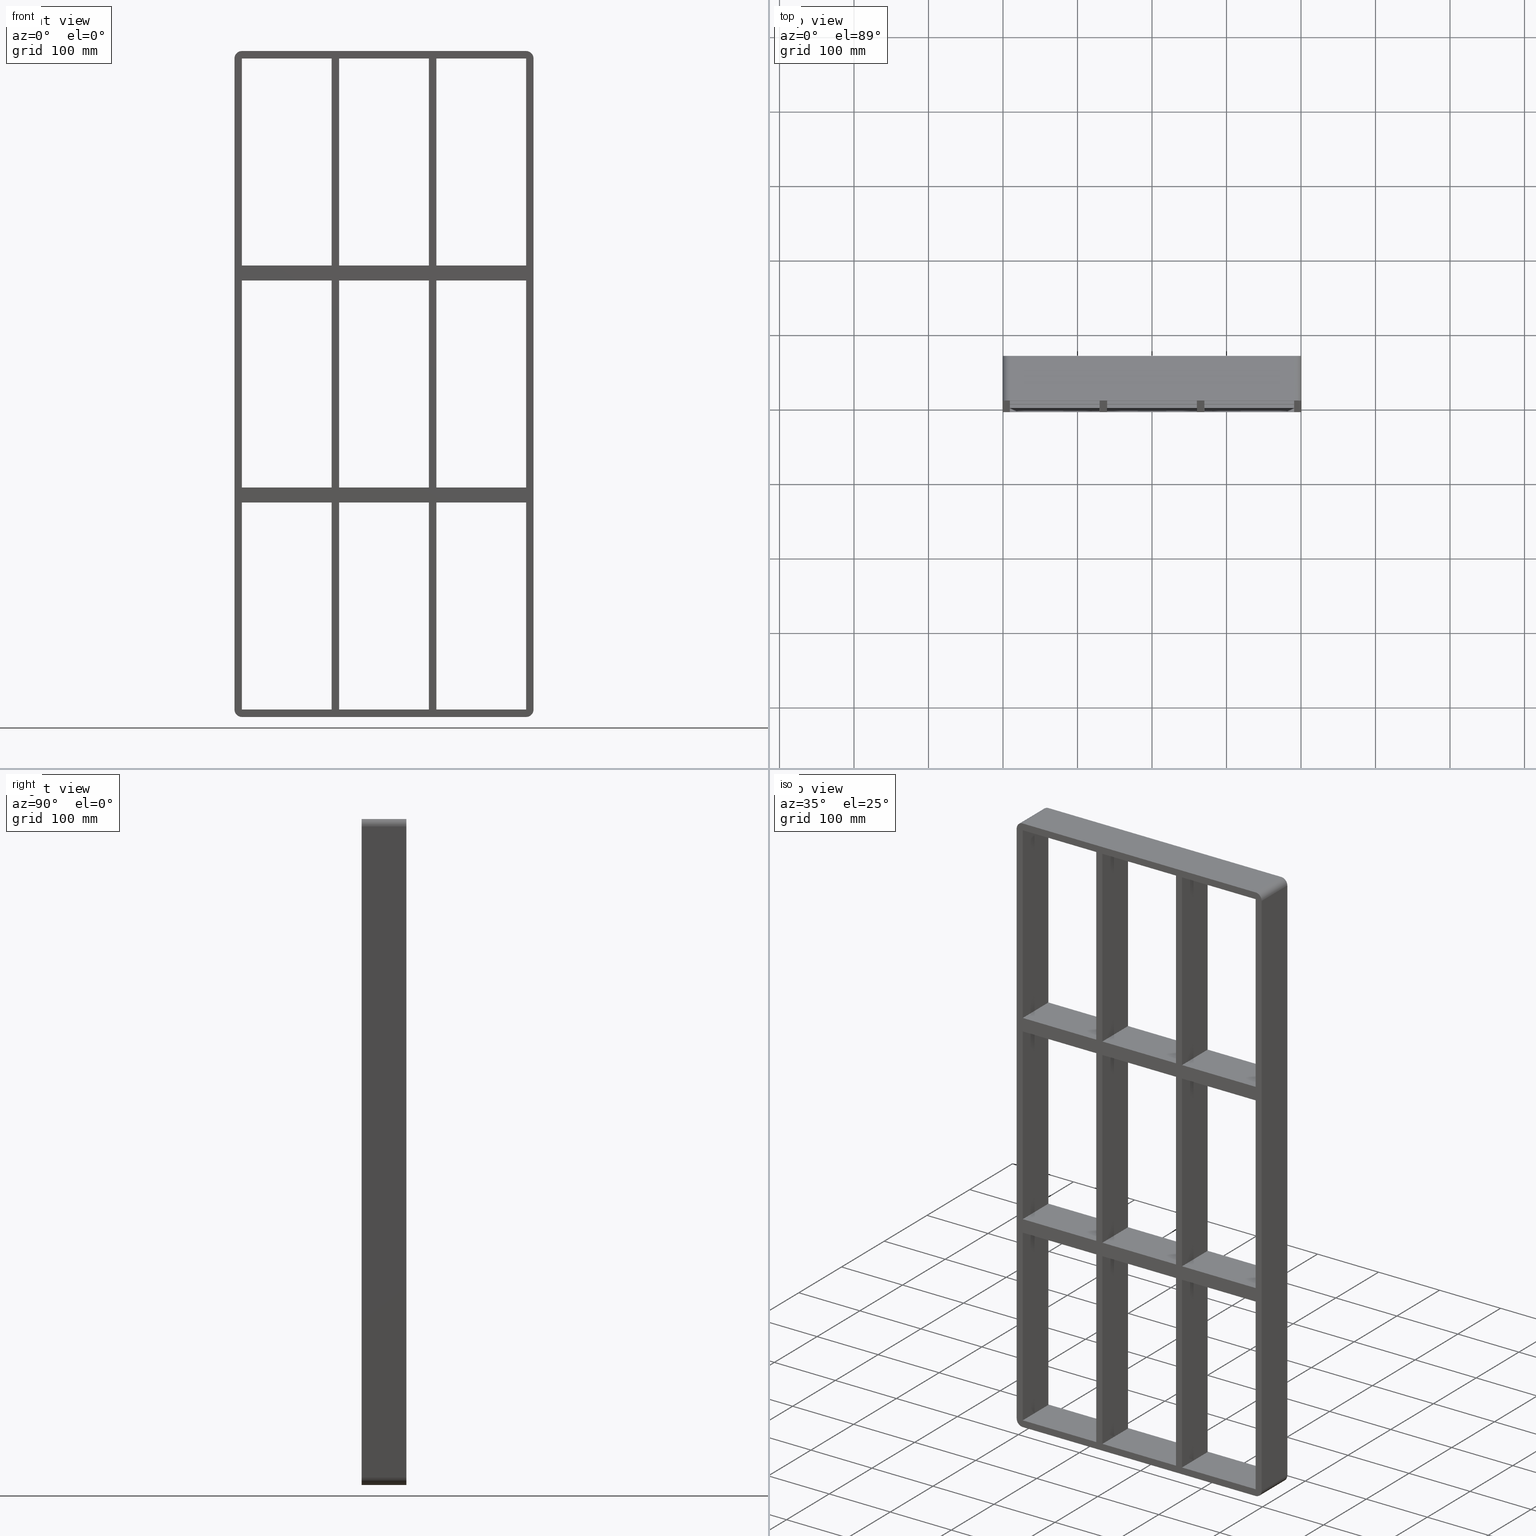
[diagram: canonical four-view strip — front | top / right | iso, engineering-drawing reading convention]
A machine part, canonical four-view strip (front | top / right | iso — engineering-drawing reading convention). The complete STEP part file that produces these views, byte-faithful:
ISO-10303-21;
HEADER;
/****************************************************************
 * Generated by software with PDElib inside                    *
 * PDElib Version v51a, created Wed 11/30/2011                  *
 * ITI Transcendata (http://www.transcendata.com/)              *
 ****************************************************************/
FILE_DESCRIPTION((''),'2;1');
FILE_NAME('C:\\RoxtecConfigurator\\CreatedFiles\\STEP\\S8+8+8X3.stp','2013-06-28T13:59:00',(''),(''),'Autodesk Inventor 2013','Autodesk Inventor 2013','');
FILE_SCHEMA(('AUTOMOTIVE_DESIGN { 1 0 10303 214 1 1 1 1 }'));
ENDSEC;
DATA;
#5=APPLICATION_CONTEXT('automotive design');
#6=APPLICATION_PROTOCOL_DEFINITION('International Standard','automotive_design',2001,#5);
#7=PRODUCT_CONTEXT('',#5,'mechanical');
#8=PRODUCT('roxtec S_SF_G','roxtec S_SF_G',$,(#7));
#9=PRODUCT_RELATED_PRODUCT_CATEGORY('part',$,(#8));
#10=PRODUCT_DEFINITION_FORMATION('',$,#8);
#11=PRODUCT_DEFINITION_CONTEXT('part definition',#5,'design');
#12=PRODUCT_DEFINITION('',$,#10,#11);
#18=(NAMED_UNIT(*)PLANE_ANGLE_UNIT()SI_UNIT($,.RADIAN.));
#19=DIMENSIONAL_EXPONENTS(0.0,0.0,0.0,0.0,0.0,0.0,0.0);
#20=PLANE_ANGLE_MEASURE_WITH_UNIT(PLANE_ANGLE_MEASURE(0.0174532925),#18);
#24=(CONVERSION_BASED_UNIT('DEGREE',#20)NAMED_UNIT(#19)PLANE_ANGLE_UNIT());
#28=(NAMED_UNIT(*)SI_UNIT($,.STERADIAN.)SOLID_ANGLE_UNIT());
#32=(LENGTH_UNIT()NAMED_UNIT(*)SI_UNIT(.MILLI.,.METRE.));
#34=UNCERTAINTY_MEASURE_WITH_UNIT(LENGTH_MEASURE(0.01),#32,'DISTANCE_ACCURACY_VALUE','');
#36=(GEOMETRIC_REPRESENTATION_CONTEXT(3)GLOBAL_UNCERTAINTY_ASSIGNED_CONTEXT((#34))GLOBAL_UNIT_ASSIGNED_CONTEXT((#24,#28,#32))REPRESENTATION_CONTEXT('None','None'));
#37=AXIS2_PLACEMENT_3D('',#38,#39,#40);
#38=CARTESIAN_POINT('',(0.0,0.0,0.0));
#39=DIRECTION('',(0.0,0.0,1.0));
#40=DIRECTION('',(1.0,0.0,0.0));
#41=SHAPE_REPRESENTATION('',(#37),#36);
#42=PRODUCT_DEFINITION_SHAPE('','',#12);
#43=SHAPE_DEFINITION_REPRESENTATION(#42,#41);
#49=(NAMED_UNIT(*)PLANE_ANGLE_UNIT()SI_UNIT($,.RADIAN.));
#50=DIMENSIONAL_EXPONENTS(0.0,0.0,0.0,0.0,0.0,0.0,0.0);
#51=PLANE_ANGLE_MEASURE_WITH_UNIT(PLANE_ANGLE_MEASURE(0.0174532925),#49);
#55=(CONVERSION_BASED_UNIT('DEGREE',#51)NAMED_UNIT(#50)PLANE_ANGLE_UNIT());
#59=(NAMED_UNIT(*)SI_UNIT($,.STERADIAN.)SOLID_ANGLE_UNIT());
#63=(LENGTH_UNIT()NAMED_UNIT(*)SI_UNIT(.MILLI.,.METRE.));
#65=UNCERTAINTY_MEASURE_WITH_UNIT(LENGTH_MEASURE(0.000001),#63,'DISTANCE_ACCURACY_VALUE','');
#67=(GEOMETRIC_REPRESENTATION_CONTEXT(3)GLOBAL_UNCERTAINTY_ASSIGNED_CONTEXT((#65))GLOBAL_UNIT_ASSIGNED_CONTEXT((#55,#59,#63))REPRESENTATION_CONTEXT('','3D'));
#68=CARTESIAN_POINT('',(190.74999999999818,-3.0,138.99999999999068));
#69=DIRECTION('',(0.0,0.0,-1.0));
#70=DIRECTION('',(-1.0,0.0,0.0));
#71=AXIS2_PLACEMENT_3D('',#68,#69,#70);
#72=PLANE('',#71);
#73=CARTESIAN_POINT('',(-70.250000000001364,-3.0,138.99999999999062));
#74=VERTEX_POINT('',#73);
#75=CARTESIAN_POINT('',(-70.250000000001364,57.0,138.99999999999062));
#76=VERTEX_POINT('',#75);
#77=CARTESIAN_POINT('',(-70.250000000001378,-3.0,138.99999999999062));
#78=DIRECTION('',(0.0,1.0,0.0));
#79=VECTOR('',#78,60.0);
#80=LINE('',#77,#79);
#81=EDGE_CURVE('',#74,#76,#80,.T.);
#82=ORIENTED_EDGE('',*,*,#81,.F.);
#83=CARTESIAN_POINT('',(-190.74999999999972,-3.0,138.99999999999056));
#84=VERTEX_POINT('',#83);
#85=CARTESIAN_POINT('',(-70.250000000001364,-3.0,138.99999999999059));
#86=DIRECTION('',(-1.0,0.0,0.0));
#87=VECTOR('',#86,120.49999999999841);
#88=LINE('',#85,#87);
#89=EDGE_CURVE('',#74,#84,#88,.T.);
#90=ORIENTED_EDGE('',*,*,#89,.T.);
#91=CARTESIAN_POINT('',(-190.74999999999972,57.0,138.99999999999056));
#92=VERTEX_POINT('',#91);
#93=CARTESIAN_POINT('',(-190.75000000000003,57.000000000000007,138.99999999999056));
#94=DIRECTION('',(0.0,-1.0,0.0));
#95=VECTOR('',#94,60.000000000000007);
#96=LINE('',#93,#95);
#97=EDGE_CURVE('',#92,#84,#96,.T.);
#98=ORIENTED_EDGE('',*,*,#97,.F.);
#99=CARTESIAN_POINT('',(-70.250000000001364,57.0,138.99999999999059));
#100=DIRECTION('',(-1.0,0.0,0.0));
#101=VECTOR('',#100,120.49999999999841);
#102=LINE('',#99,#101);
#103=EDGE_CURVE('',#76,#92,#102,.T.);
#104=ORIENTED_EDGE('',*,*,#103,.F.);
#105=EDGE_LOOP('',(#82,#90,#98,#104));
#106=FACE_OUTER_BOUND('',#105,.T.);
#107=ADVANCED_FACE('',(#106),#72,.T.);
#108=CARTESIAN_POINT('',(190.74999999999818,-3.0,138.99999999999068));
#109=DIRECTION('',(0.0,0.0,-1.0));
#110=DIRECTION('',(-1.0,0.0,0.0));
#111=AXIS2_PLACEMENT_3D('',#108,#109,#110);
#112=PLANE('',#111);
#113=CARTESIAN_POINT('',(70.250000000003638,57.0,138.99999999999065));
#114=VERTEX_POINT('',#113);
#115=CARTESIAN_POINT('',(70.250000000003638,-3.0,138.99999999999065));
#116=VERTEX_POINT('',#115);
#117=CARTESIAN_POINT('',(70.250000000003638,57.0,138.99999999999065));
#118=DIRECTION('',(0.0,-1.0,0.0));
#119=VECTOR('',#118,60.0);
#120=LINE('',#117,#119);
#121=EDGE_CURVE('',#114,#116,#120,.T.);
#122=ORIENTED_EDGE('',*,*,#121,.F.);
#123=CARTESIAN_POINT('',(190.74999999999821,57.0,138.99999999999068));
#124=VERTEX_POINT('',#123);
#125=CARTESIAN_POINT('',(190.74999999999818,57.0,138.99999999999068));
#126=DIRECTION('',(-1.0,0.0,0.0));
#127=VECTOR('',#126,120.49999999999454);
#128=LINE('',#125,#127);
#129=EDGE_CURVE('',#124,#114,#128,.T.);
#130=ORIENTED_EDGE('',*,*,#129,.F.);
#131=CARTESIAN_POINT('',(190.74999999999818,-3.0,138.99999999999068));
#132=VERTEX_POINT('',#131);
#133=CARTESIAN_POINT('',(190.75000000000003,-3.0,138.99999999999068));
#134=DIRECTION('',(0.0,1.0,0.0));
#135=VECTOR('',#134,60.000000000000007);
#136=LINE('',#133,#135);
#137=EDGE_CURVE('',#132,#124,#136,.T.);
#138=ORIENTED_EDGE('',*,*,#137,.F.);
#139=CARTESIAN_POINT('',(190.74999999999818,-3.0,138.99999999999068));
#140=DIRECTION('',(-1.0,0.0,0.0));
#141=VECTOR('',#140,120.49999999999454);
#142=LINE('',#139,#141);
#143=EDGE_CURVE('',#132,#116,#142,.T.);
#144=ORIENTED_EDGE('',*,*,#143,.T.);
#145=EDGE_LOOP('',(#122,#130,#138,#144));
#146=FACE_OUTER_BOUND('',#145,.T.);
#147=ADVANCED_FACE('',(#146),#112,.T.);
#148=CARTESIAN_POINT('',(190.74999999999818,-3.0,138.99999999999068));
#149=DIRECTION('',(0.0,0.0,-1.0));
#150=DIRECTION('',(-1.0,0.0,0.0));
#151=AXIS2_PLACEMENT_3D('',#148,#149,#150);
#152=PLANE('',#151);
#153=CARTESIAN_POINT('',(60.249999999998636,-3.0,138.99999999999065));
#154=VERTEX_POINT('',#153);
#155=CARTESIAN_POINT('',(60.249999999998636,57.0,138.99999999999065));
#156=VERTEX_POINT('',#155);
#157=CARTESIAN_POINT('',(60.249999999998636,-3.0,138.99999999999062));
#158=DIRECTION('',(0.0,1.0,0.0));
#159=VECTOR('',#158,60.0);
#160=LINE('',#157,#159);
#161=EDGE_CURVE('',#154,#156,#160,.T.);
#162=ORIENTED_EDGE('',*,*,#161,.F.);
#163=CARTESIAN_POINT('',(-60.249999999996362,-3.0,138.99999999999062));
#164=VERTEX_POINT('',#163);
#165=CARTESIAN_POINT('',(60.249999999998636,-3.0,138.99999999999065));
#166=DIRECTION('',(-1.0,0.0,0.0));
#167=VECTOR('',#166,120.499999999995);
#168=LINE('',#165,#167);
#169=EDGE_CURVE('',#154,#164,#168,.T.);
#170=ORIENTED_EDGE('',*,*,#169,.T.);
#171=CARTESIAN_POINT('',(-60.249999999996362,57.0,138.99999999999062));
#172=VERTEX_POINT('',#171);
#173=CARTESIAN_POINT('',(-60.249999999996355,57.0,138.99999999999062));
#174=DIRECTION('',(0.0,-1.0,0.0));
#175=VECTOR('',#174,60.0);
#176=LINE('',#173,#175);
#177=EDGE_CURVE('',#172,#164,#176,.T.);
#178=ORIENTED_EDGE('',*,*,#177,.F.);
#179=CARTESIAN_POINT('',(60.249999999998636,57.0,138.99999999999065));
#180=DIRECTION('',(-1.0,0.0,0.0));
#181=VECTOR('',#180,120.499999999995);
#182=LINE('',#179,#181);
#183=EDGE_CURVE('',#156,#172,#182,.T.);
#184=ORIENTED_EDGE('',*,*,#183,.F.);
#185=EDGE_LOOP('',(#162,#170,#178,#184));
#186=FACE_OUTER_BOUND('',#185,.T.);
#187=ADVANCED_FACE('',(#186),#152,.T.);
#188=CARTESIAN_POINT('',(-190.74999999999972,-3.0,158.99999999999994));
#189=DIRECTION('',(0.0,0.0,1.0));
#190=DIRECTION('',(1.0,0.0,0.0));
#191=AXIS2_PLACEMENT_3D('',#188,#189,#190);
#192=PLANE('',#191);
#193=CARTESIAN_POINT('',(-70.250000000001364,57.0,158.99999999999991));
#194=VERTEX_POINT('',#193);
#195=CARTESIAN_POINT('',(-70.250000000001364,-3.0,158.99999999999991));
#196=VERTEX_POINT('',#195);
#197=CARTESIAN_POINT('',(-70.250000000001364,57.0,158.99999999999994));
#198=DIRECTION('',(0.0,-1.0,0.0));
#199=VECTOR('',#198,60.0);
#200=LINE('',#197,#199);
#201=EDGE_CURVE('',#194,#196,#200,.T.);
#202=ORIENTED_EDGE('',*,*,#201,.F.);
#203=CARTESIAN_POINT('',(-190.74999999999972,57.0,158.99999999999994));
#204=VERTEX_POINT('',#203);
#205=CARTESIAN_POINT('',(-190.74999999999972,57.0,158.99999999999994));
#206=DIRECTION('',(1.0,0.0,0.0));
#207=VECTOR('',#206,120.49999999999834);
#208=LINE('',#205,#207);
#209=EDGE_CURVE('',#204,#194,#208,.T.);
#210=ORIENTED_EDGE('',*,*,#209,.F.);
#211=CARTESIAN_POINT('',(-190.74999999999972,-3.0,158.99999999999994));
#212=VERTEX_POINT('',#211);
#213=CARTESIAN_POINT('',(-190.75000000000003,-3.0,158.99999999999994));
#214=DIRECTION('',(0.0,1.0,0.0));
#215=VECTOR('',#214,60.000000000000007);
#216=LINE('',#213,#215);
#217=EDGE_CURVE('',#212,#204,#216,.T.);
#218=ORIENTED_EDGE('',*,*,#217,.F.);
#219=CARTESIAN_POINT('',(-190.74999999999972,-3.0,158.99999999999994));
#220=DIRECTION('',(1.0,0.0,0.0));
#221=VECTOR('',#220,120.49999999999834);
#222=LINE('',#219,#221);
#223=EDGE_CURVE('',#212,#196,#222,.T.);
#224=ORIENTED_EDGE('',*,*,#223,.T.);
#225=EDGE_LOOP('',(#202,#210,#218,#224));
#226=FACE_OUTER_BOUND('',#225,.T.);
#227=ADVANCED_FACE('',(#226),#192,.T.);
#228=CARTESIAN_POINT('',(-190.74999999999972,-3.0,158.99999999999994));
#229=DIRECTION('',(0.0,0.0,1.0));
#230=DIRECTION('',(1.0,0.0,0.0));
#231=AXIS2_PLACEMENT_3D('',#228,#229,#230);
#232=PLANE('',#231);
#233=CARTESIAN_POINT('',(70.250000000003638,-3.0,158.99999999999994));
#234=VERTEX_POINT('',#233);
#235=CARTESIAN_POINT('',(70.250000000003638,57.0,158.99999999999994));
#236=VERTEX_POINT('',#235);
#237=CARTESIAN_POINT('',(70.250000000003638,-3.0,158.99999999999994));
#238=DIRECTION('',(0.0,1.0,0.0));
#239=VECTOR('',#238,60.0);
#240=LINE('',#237,#239);
#241=EDGE_CURVE('',#234,#236,#240,.T.);
#242=ORIENTED_EDGE('',*,*,#241,.F.);
#243=CARTESIAN_POINT('',(190.74999999999991,-3.0,158.99999999999994));
#244=VERTEX_POINT('',#243);
#245=CARTESIAN_POINT('',(70.250000000003638,-3.0,158.99999999999994));
#246=DIRECTION('',(1.0,0.0,0.0));
#247=VECTOR('',#246,120.49999999999631);
#248=LINE('',#245,#247);
#249=EDGE_CURVE('',#234,#244,#248,.T.);
#250=ORIENTED_EDGE('',*,*,#249,.T.);
#251=CARTESIAN_POINT('',(190.74999999999991,57.0,158.99999999999994));
#252=VERTEX_POINT('',#251);
#253=CARTESIAN_POINT('',(190.75000000000003,57.000000000000007,158.99999999999994));
#254=DIRECTION('',(0.0,-1.0,0.0));
#255=VECTOR('',#254,60.000000000000007);
#256=LINE('',#253,#255);
#257=EDGE_CURVE('',#252,#244,#256,.T.);
#258=ORIENTED_EDGE('',*,*,#257,.F.);
#259=CARTESIAN_POINT('',(70.250000000003638,57.0,158.99999999999994));
#260=DIRECTION('',(1.0,0.0,0.0));
#261=VECTOR('',#260,120.49999999999631);
#262=LINE('',#259,#261);
#263=EDGE_CURVE('',#236,#252,#262,.T.);
#264=ORIENTED_EDGE('',*,*,#263,.F.);
#265=EDGE_LOOP('',(#242,#250,#258,#264));
#266=FACE_OUTER_BOUND('',#265,.T.);
#267=ADVANCED_FACE('',(#266),#232,.T.);
#268=CARTESIAN_POINT('',(-190.74999999999972,-3.0,158.99999999999994));
#269=DIRECTION('',(0.0,0.0,1.0));
#270=DIRECTION('',(1.0,0.0,0.0));
#271=AXIS2_PLACEMENT_3D('',#268,#269,#270);
#272=PLANE('',#271);
#273=CARTESIAN_POINT('',(60.249999999998636,57.0,158.99999999999994));
#274=VERTEX_POINT('',#273);
#275=CARTESIAN_POINT('',(60.249999999998636,-3.0,158.99999999999994));
#276=VERTEX_POINT('',#275);
#277=CARTESIAN_POINT('',(60.249999999998636,57.0,158.99999999999994));
#278=DIRECTION('',(0.0,-1.0,0.0));
#279=VECTOR('',#278,60.0);
#280=LINE('',#277,#279);
#281=EDGE_CURVE('',#274,#276,#280,.T.);
#282=ORIENTED_EDGE('',*,*,#281,.F.);
#283=CARTESIAN_POINT('',(-60.249999999996362,57.0,158.99999999999994));
#284=VERTEX_POINT('',#283);
#285=CARTESIAN_POINT('',(-60.249999999996362,57.0,158.99999999999994));
#286=DIRECTION('',(1.0,0.0,0.0));
#287=VECTOR('',#286,120.499999999995);
#288=LINE('',#285,#287);
#289=EDGE_CURVE('',#284,#274,#288,.T.);
#290=ORIENTED_EDGE('',*,*,#289,.F.);
#291=CARTESIAN_POINT('',(-60.249999999996362,-3.0,158.99999999999994));
#292=VERTEX_POINT('',#291);
#293=CARTESIAN_POINT('',(-60.249999999996362,-3.0,158.99999999999994));
#294=DIRECTION('',(0.0,1.0,0.0));
#295=VECTOR('',#294,60.0);
#296=LINE('',#293,#295);
#297=EDGE_CURVE('',#292,#284,#296,.T.);
#298=ORIENTED_EDGE('',*,*,#297,.F.);
#299=CARTESIAN_POINT('',(-60.249999999996362,-3.0,158.99999999999994));
#300=DIRECTION('',(1.0,0.0,0.0));
#301=VECTOR('',#300,120.499999999995);
#302=LINE('',#299,#301);
#303=EDGE_CURVE('',#292,#276,#302,.T.);
#304=ORIENTED_EDGE('',*,*,#303,.T.);
#305=EDGE_LOOP('',(#282,#290,#298,#304));
#306=FACE_OUTER_BOUND('',#305,.T.);
#307=ADVANCED_FACE('',(#306),#272,.T.);
#308=CARTESIAN_POINT('',(-190.75000000000003,0.0,-437.0));
#309=DIRECTION('',(-1.0,0.0,0.0));
#310=DIRECTION('',(0.0,0.0,1.0));
#311=AXIS2_PLACEMENT_3D('',#308,#309,#310);
#312=PLANE('',#311);
#313=ORIENTED_EDGE('',*,*,#217,.T.);
#314=CARTESIAN_POINT('',(-190.75000000000003,57.0,437.0));
#315=VERTEX_POINT('',#314);
#316=CARTESIAN_POINT('',(-190.75000000000003,57.0,437.00000000000011));
#317=DIRECTION('',(0.0,0.0,-1.0));
#318=VECTOR('',#317,278.00000000000011);
#319=LINE('',#316,#318);
#320=EDGE_CURVE('',#315,#204,#319,.T.);
#321=ORIENTED_EDGE('',*,*,#320,.F.);
#322=CARTESIAN_POINT('',(-190.75000000000003,-3.0,437.0));
#323=VERTEX_POINT('',#322);
#324=CARTESIAN_POINT('',(-190.75000000000003,-3.0,437.0));
#325=DIRECTION('',(0.0,1.0,0.0));
#326=VECTOR('',#325,60.0);
#327=LINE('',#324,#326);
#328=EDGE_CURVE('',#323,#315,#327,.T.);
#329=ORIENTED_EDGE('',*,*,#328,.F.);
#330=CARTESIAN_POINT('',(-190.75000000000003,-3.0,159.0));
#331=DIRECTION('',(0.0,0.0,1.0));
#332=VECTOR('',#331,278.00000000000011);
#333=LINE('',#330,#332);
#334=EDGE_CURVE('',#212,#323,#333,.T.);
#335=ORIENTED_EDGE('',*,*,#334,.F.);
#336=EDGE_LOOP('',(#313,#321,#329,#335));
#337=FACE_OUTER_BOUND('',#336,.T.);
#338=ADVANCED_FACE('',(#337),#312,.F.);
#339=CARTESIAN_POINT('',(190.75000000000003,0.0,437.0));
#340=DIRECTION('',(1.0,0.0,0.0));
#341=DIRECTION('',(0.0,0.0,-1.0));
#342=AXIS2_PLACEMENT_3D('',#339,#340,#341);
#343=PLANE('',#342);
#344=ORIENTED_EDGE('',*,*,#137,.T.);
#345=CARTESIAN_POINT('',(190.74999999999991,57.0,-139.00000000000006));
#346=VERTEX_POINT('',#345);
#347=CARTESIAN_POINT('',(190.75000000000003,57.0,-139.00000000000006));
#348=DIRECTION('',(0.0,0.0,1.0));
#349=VECTOR('',#348,277.99999999999073);
#350=LINE('',#347,#349);
#351=EDGE_CURVE('',#346,#124,#350,.T.);
#352=ORIENTED_EDGE('',*,*,#351,.F.);
#353=CARTESIAN_POINT('',(190.74999999999991,-3.0,-139.00000000000006));
#354=VERTEX_POINT('',#353);
#355=CARTESIAN_POINT('',(190.75000000000003,57.000000000000007,-139.00000000000006));
#356=DIRECTION('',(0.0,-1.0,0.0));
#357=VECTOR('',#356,60.000000000000007);
#358=LINE('',#355,#357);
#359=EDGE_CURVE('',#346,#354,#358,.T.);
#360=ORIENTED_EDGE('',*,*,#359,.T.);
#361=CARTESIAN_POINT('',(190.75000000000003,-3.0,138.99999999999068));
#362=DIRECTION('',(0.0,0.0,-1.0));
#363=VECTOR('',#362,277.99999999999073);
#364=LINE('',#361,#363);
#365=EDGE_CURVE('',#132,#354,#364,.T.);
#366=ORIENTED_EDGE('',*,*,#365,.F.);
#367=EDGE_LOOP('',(#344,#352,#360,#366));
#368=FACE_OUTER_BOUND('',#367,.T.);
#369=ADVANCED_FACE('',(#368),#343,.F.);
#370=CARTESIAN_POINT('',(190.75000000000003,0.0,437.0));
#371=DIRECTION('',(1.0,0.0,0.0));
#372=DIRECTION('',(0.0,0.0,-1.0));
#373=AXIS2_PLACEMENT_3D('',#370,#371,#372);
#374=PLANE('',#373);
#375=ORIENTED_EDGE('',*,*,#257,.T.);
#376=CARTESIAN_POINT('',(190.75000000000003,-3.0,437.0));
#377=VERTEX_POINT('',#376);
#378=CARTESIAN_POINT('',(190.75000000000003,-3.0,437.0));
#379=DIRECTION('',(0.0,0.0,-1.0));
#380=VECTOR('',#379,278.00000000000006);
#381=LINE('',#378,#380);
#382=EDGE_CURVE('',#377,#244,#381,.T.);
#383=ORIENTED_EDGE('',*,*,#382,.F.);
#384=CARTESIAN_POINT('',(190.75000000000003,57.0,437.0));
#385=VERTEX_POINT('',#384);
#386=CARTESIAN_POINT('',(190.75000000000003,-3.0,437.0));
#387=DIRECTION('',(0.0,1.0,0.0));
#388=VECTOR('',#387,60.0);
#389=LINE('',#386,#388);
#390=EDGE_CURVE('',#377,#385,#389,.T.);
#391=ORIENTED_EDGE('',*,*,#390,.T.);
#392=CARTESIAN_POINT('',(190.75000000000003,57.0,158.99999999999994));
#393=DIRECTION('',(0.0,0.0,1.0));
#394=VECTOR('',#393,278.00000000000006);
#395=LINE('',#392,#394);
#396=EDGE_CURVE('',#252,#385,#395,.T.);
#397=ORIENTED_EDGE('',*,*,#396,.F.);
#398=EDGE_LOOP('',(#375,#383,#391,#397));
#399=FACE_OUTER_BOUND('',#398,.T.);
#400=ADVANCED_FACE('',(#399),#374,.F.);
#401=CARTESIAN_POINT('',(60.249999999998742,-3.0,-437.0));
#402=DIRECTION('',(-1.0,0.0,0.0));
#403=DIRECTION('',(0.0,0.0,1.0));
#404=AXIS2_PLACEMENT_3D('',#401,#402,#403);
#405=PLANE('',#404);
#406=ORIENTED_EDGE('',*,*,#281,.T.);
#407=CARTESIAN_POINT('',(60.249999999998579,-3.0,437.0));
#408=VERTEX_POINT('',#407);
#409=CARTESIAN_POINT('',(60.249999999998636,-3.0,159.0));
#410=DIRECTION('',(0.0,0.0,1.0));
#411=VECTOR('',#410,278.0);
#412=LINE('',#409,#411);
#413=EDGE_CURVE('',#276,#408,#412,.T.);
#414=ORIENTED_EDGE('',*,*,#413,.T.);
#415=CARTESIAN_POINT('',(60.249999999998579,57.0,437.0));
#416=VERTEX_POINT('',#415);
#417=CARTESIAN_POINT('',(60.249999999998572,57.000000000000007,437.0));
#418=DIRECTION('',(0.0,-1.0,0.0));
#419=VECTOR('',#418,60.000000000000007);
#420=LINE('',#417,#419);
#421=EDGE_CURVE('',#416,#408,#420,.T.);
#422=ORIENTED_EDGE('',*,*,#421,.F.);
#423=CARTESIAN_POINT('',(60.249999999998636,57.0,159.0));
#424=DIRECTION('',(0.0,0.0,1.0));
#425=VECTOR('',#424,278.0);
#426=LINE('',#423,#425);
#427=EDGE_CURVE('',#274,#416,#426,.T.);
#428=ORIENTED_EDGE('',*,*,#427,.F.);
#429=EDGE_LOOP('',(#406,#414,#422,#428));
#430=FACE_OUTER_BOUND('',#429,.T.);
#431=ADVANCED_FACE('',(#430),#405,.T.);
#432=CARTESIAN_POINT('',(70.250000000003638,-3.0,437.0));
#433=DIRECTION('',(1.0,0.0,0.0));
#434=DIRECTION('',(0.0,0.0,-1.0));
#435=AXIS2_PLACEMENT_3D('',#432,#433,#434);
#436=PLANE('',#435);
#437=ORIENTED_EDGE('',*,*,#241,.T.);
#438=CARTESIAN_POINT('',(70.250000000003638,57.0,437.0));
#439=VERTEX_POINT('',#438);
#440=CARTESIAN_POINT('',(70.250000000003638,57.0,437.0));
#441=DIRECTION('',(0.0,0.0,-1.0));
#442=VECTOR('',#441,278.00000000000006);
#443=LINE('',#440,#442);
#444=EDGE_CURVE('',#439,#236,#443,.T.);
#445=ORIENTED_EDGE('',*,*,#444,.F.);
#446=CARTESIAN_POINT('',(70.250000000003638,-3.0,437.0));
#447=VERTEX_POINT('',#446);
#448=CARTESIAN_POINT('',(70.250000000003638,-3.0,437.0));
#449=DIRECTION('',(0.0,1.0,0.0));
#450=VECTOR('',#449,60.000000000000007);
#451=LINE('',#448,#450);
#452=EDGE_CURVE('',#447,#439,#451,.T.);
#453=ORIENTED_EDGE('',*,*,#452,.F.);
#454=CARTESIAN_POINT('',(70.250000000003638,-3.0,437.0));
#455=DIRECTION('',(0.0,0.0,-1.0));
#456=VECTOR('',#455,278.00000000000006);
#457=LINE('',#454,#456);
#458=EDGE_CURVE('',#447,#234,#457,.T.);
#459=ORIENTED_EDGE('',*,*,#458,.T.);
#460=EDGE_LOOP('',(#437,#445,#453,#459));
#461=FACE_OUTER_BOUND('',#460,.T.);
#462=ADVANCED_FACE('',(#461),#436,.T.);
#463=CARTESIAN_POINT('',(-70.250000000001265,-3.0,-437.0));
#464=DIRECTION('',(-1.0,0.0,0.0));
#465=DIRECTION('',(0.0,0.0,1.0));
#466=AXIS2_PLACEMENT_3D('',#463,#464,#465);
#467=PLANE('',#466);
#468=ORIENTED_EDGE('',*,*,#201,.T.);
#469=CARTESIAN_POINT('',(-70.250000000001421,-3.0,437.0));
#470=VERTEX_POINT('',#469);
#471=CARTESIAN_POINT('',(-70.250000000001378,-3.0,159.0));
#472=DIRECTION('',(0.0,0.0,1.0));
#473=VECTOR('',#472,278.0);
#474=LINE('',#471,#473);
#475=EDGE_CURVE('',#196,#470,#474,.T.);
#476=ORIENTED_EDGE('',*,*,#475,.T.);
#477=CARTESIAN_POINT('',(-70.250000000001421,57.0,437.0));
#478=VERTEX_POINT('',#477);
#479=CARTESIAN_POINT('',(-70.250000000001421,57.000000000000007,437.0));
#480=DIRECTION('',(0.0,-1.0,0.0));
#481=VECTOR('',#480,60.000000000000007);
#482=LINE('',#479,#481);
#483=EDGE_CURVE('',#478,#470,#482,.T.);
#484=ORIENTED_EDGE('',*,*,#483,.F.);
#485=CARTESIAN_POINT('',(-70.250000000001378,57.0,159.0));
#486=DIRECTION('',(0.0,0.0,1.0));
#487=VECTOR('',#486,278.0);
#488=LINE('',#485,#487);
#489=EDGE_CURVE('',#194,#478,#488,.T.);
#490=ORIENTED_EDGE('',*,*,#489,.F.);
#491=EDGE_LOOP('',(#468,#476,#484,#490));
#492=FACE_OUTER_BOUND('',#491,.T.);
#493=ADVANCED_FACE('',(#492),#467,.T.);
#494=CARTESIAN_POINT('',(-70.250000000001265,-3.0,-437.0));
#495=DIRECTION('',(-1.0,0.0,0.0));
#496=DIRECTION('',(0.0,0.0,1.0));
#497=AXIS2_PLACEMENT_3D('',#494,#495,#496);
#498=PLANE('',#497);
#499=ORIENTED_EDGE('',*,*,#81,.T.);
#500=CARTESIAN_POINT('',(-70.250000000001322,57.0,-139.00000000000006));
#501=VERTEX_POINT('',#500);
#502=CARTESIAN_POINT('',(-70.250000000001322,57.0,-139.0));
#503=DIRECTION('',(0.0,0.0,1.0));
#504=VECTOR('',#503,277.99999999999068);
#505=LINE('',#502,#504);
#506=EDGE_CURVE('',#501,#76,#505,.T.);
#507=ORIENTED_EDGE('',*,*,#506,.F.);
#508=CARTESIAN_POINT('',(-70.250000000001322,-3.0,-139.00000000000006));
#509=VERTEX_POINT('',#508);
#510=CARTESIAN_POINT('',(-70.250000000001322,57.0,-139.00000000000006));
#511=DIRECTION('',(0.0,-1.0,0.0));
#512=VECTOR('',#511,60.0);
#513=LINE('',#510,#512);
#514=EDGE_CURVE('',#501,#509,#513,.T.);
#515=ORIENTED_EDGE('',*,*,#514,.T.);
#516=CARTESIAN_POINT('',(-70.250000000001322,-3.0,-139.0));
#517=DIRECTION('',(0.0,0.0,1.0));
#518=VECTOR('',#517,277.99999999999068);
#519=LINE('',#516,#518);
#520=EDGE_CURVE('',#509,#74,#519,.T.);
#521=ORIENTED_EDGE('',*,*,#520,.T.);
#522=EDGE_LOOP('',(#499,#507,#515,#521));
#523=FACE_OUTER_BOUND('',#522,.T.);
#524=ADVANCED_FACE('',(#523),#498,.T.);
#525=CARTESIAN_POINT('',(-60.249999999996362,-3.0,437.0));
#526=DIRECTION('',(1.0,0.0,0.0));
#527=DIRECTION('',(0.0,0.0,-1.0));
#528=AXIS2_PLACEMENT_3D('',#525,#526,#527);
#529=PLANE('',#528);
#530=ORIENTED_EDGE('',*,*,#297,.T.);
#531=CARTESIAN_POINT('',(-60.249999999996362,57.0,437.0));
#532=VERTEX_POINT('',#531);
#533=CARTESIAN_POINT('',(-60.249999999996362,57.0,437.0));
#534=DIRECTION('',(0.0,0.0,-1.0));
#535=VECTOR('',#534,278.00000000000006);
#536=LINE('',#533,#535);
#537=EDGE_CURVE('',#532,#284,#536,.T.);
#538=ORIENTED_EDGE('',*,*,#537,.F.);
#539=CARTESIAN_POINT('',(-60.249999999996362,-3.0,437.0));
#540=VERTEX_POINT('',#539);
#541=CARTESIAN_POINT('',(-60.249999999996362,-3.0,437.0));
#542=DIRECTION('',(0.0,1.0,0.0));
#543=VECTOR('',#542,60.000000000000007);
#544=LINE('',#541,#543);
#545=EDGE_CURVE('',#540,#532,#544,.T.);
#546=ORIENTED_EDGE('',*,*,#545,.F.);
#547=CARTESIAN_POINT('',(-60.249999999996362,-3.0,437.0));
#548=DIRECTION('',(0.0,0.0,-1.0));
#549=VECTOR('',#548,278.00000000000006);
#550=LINE('',#547,#549);
#551=EDGE_CURVE('',#540,#292,#550,.T.);
#552=ORIENTED_EDGE('',*,*,#551,.T.);
#553=EDGE_LOOP('',(#530,#538,#546,#552));
#554=FACE_OUTER_BOUND('',#553,.T.);
#555=ADVANCED_FACE('',(#554),#529,.T.);
#556=CARTESIAN_POINT('',(0.0,57.0,0.0));
#557=DIRECTION('',(0.0,1.0,0.0));
#558=DIRECTION('',(0.0,0.0,1.0));
#559=AXIS2_PLACEMENT_3D('',#556,#557,#558);
#560=PLANE('',#559);
#561=CARTESIAN_POINT('',(190.75000000000003,57.0,-447.0));
#562=VERTEX_POINT('',#561);
#563=CARTESIAN_POINT('',(200.75000000000003,57.0,-437.0));
#564=VERTEX_POINT('',#563);
#565=CARTESIAN_POINT('',(190.75000000000003,57.0,-437.0));
#566=DIRECTION('',(0.0,-1.0,0.0));
#567=DIRECTION('',(0.707106781186547,0.0,-0.707106781186547));
#568=AXIS2_PLACEMENT_3D('',#565,#566,#567);
#569=CIRCLE('',#568,9.999999999999998);
#570=EDGE_CURVE('',#562,#564,#569,.T.);
#571=ORIENTED_EDGE('',*,*,#570,.F.);
#572=CARTESIAN_POINT('',(-190.75000000000003,57.0,-447.0));
#573=VERTEX_POINT('',#572);
#574=CARTESIAN_POINT('',(190.75000000000003,57.0,-447.0));
#575=DIRECTION('',(-1.0,0.0,0.0));
#576=VECTOR('',#575,381.50000000000006);
#577=LINE('',#574,#576);
#578=EDGE_CURVE('',#562,#573,#577,.T.);
#579=ORIENTED_EDGE('',*,*,#578,.T.);
#580=CARTESIAN_POINT('',(-200.75000000000003,57.0,-437.0));
#581=VERTEX_POINT('',#580);
#582=CARTESIAN_POINT('',(-190.75000000000003,57.0,-437.0));
#583=DIRECTION('',(0.0,-1.0,0.0));
#584=DIRECTION('',(-0.707106781186547,0.0,-0.707106781186547));
#585=AXIS2_PLACEMENT_3D('',#582,#583,#584);
#586=CIRCLE('',#585,9.999999999999998);
#587=EDGE_CURVE('',#581,#573,#586,.T.);
#588=ORIENTED_EDGE('',*,*,#587,.F.);
#589=CARTESIAN_POINT('',(-200.75000000000003,57.0,437.0));
#590=VERTEX_POINT('',#589);
#591=CARTESIAN_POINT('',(-200.75000000000003,57.0,-437.0));
#592=DIRECTION('',(0.0,0.0,1.0));
#593=VECTOR('',#592,874.0);
#594=LINE('',#591,#593);
#595=EDGE_CURVE('',#581,#590,#594,.T.);
#596=ORIENTED_EDGE('',*,*,#595,.T.);
#597=CARTESIAN_POINT('',(-190.75000000000003,57.0,447.0));
#598=VERTEX_POINT('',#597);
#599=CARTESIAN_POINT('',(-190.75000000000003,57.0,437.0));
#600=DIRECTION('',(0.0,-1.0,0.0));
#601=DIRECTION('',(-0.707106781186547,0.0,0.707106781186547));
#602=AXIS2_PLACEMENT_3D('',#599,#600,#601);
#603=CIRCLE('',#602,9.999999999999998);
#604=EDGE_CURVE('',#598,#590,#603,.T.);
#605=ORIENTED_EDGE('',*,*,#604,.F.);
#606=CARTESIAN_POINT('',(190.75000000000003,57.0,447.0));
#607=VERTEX_POINT('',#606);
#608=CARTESIAN_POINT('',(-190.75000000000003,57.0,447.0));
#609=DIRECTION('',(1.0,0.0,0.0));
#610=VECTOR('',#609,381.50000000000006);
#611=LINE('',#608,#610);
#612=EDGE_CURVE('',#598,#607,#611,.T.);
#613=ORIENTED_EDGE('',*,*,#612,.T.);
#614=CARTESIAN_POINT('',(200.75000000000003,57.0,437.0));
#615=VERTEX_POINT('',#614);
#616=CARTESIAN_POINT('',(190.75000000000003,57.0,437.0));
#617=DIRECTION('',(0.0,-1.0,0.0));
#618=DIRECTION('',(0.707106781186547,0.0,0.707106781186547));
#619=AXIS2_PLACEMENT_3D('',#616,#617,#618);
#620=CIRCLE('',#619,9.999999999999998);
#621=EDGE_CURVE('',#615,#607,#620,.T.);
#622=ORIENTED_EDGE('',*,*,#621,.F.);
#623=CARTESIAN_POINT('',(200.75000000000003,57.0,437.0));
#624=DIRECTION('',(0.0,0.0,-1.0));
#625=VECTOR('',#624,874.0);
#626=LINE('',#623,#625);
#627=EDGE_CURVE('',#615,#564,#626,.T.);
#628=ORIENTED_EDGE('',*,*,#627,.T.);
#629=EDGE_LOOP('',(#571,#579,#588,#596,#605,#613,#622,#628));
#630=FACE_OUTER_BOUND('',#629,.T.);
#631=CARTESIAN_POINT('',(-190.74999999999972,57.0,-139.00000000000006));
#632=VERTEX_POINT('',#631);
#633=CARTESIAN_POINT('',(-190.75000000000003,57.0,138.99999999999062));
#634=DIRECTION('',(0.0,0.0,-1.0));
#635=VECTOR('',#634,277.99999999999068);
#636=LINE('',#633,#635);
#637=EDGE_CURVE('',#92,#632,#636,.T.);
#638=ORIENTED_EDGE('',*,*,#637,.T.);
#639=CARTESIAN_POINT('',(-190.74999999999972,57.0,-139.00000000000006));
#640=DIRECTION('',(1.0,0.0,0.0));
#641=VECTOR('',#640,120.49999999999839);
#642=LINE('',#639,#641);
#643=EDGE_CURVE('',#632,#501,#642,.T.);
#644=ORIENTED_EDGE('',*,*,#643,.T.);
#645=ORIENTED_EDGE('',*,*,#506,.T.);
#646=ORIENTED_EDGE('',*,*,#103,.T.);
#647=EDGE_LOOP('',(#638,#644,#645,#646));
#648=FACE_BOUND('',#647,.T.);
#649=ORIENTED_EDGE('',*,*,#396,.T.);
#650=CARTESIAN_POINT('',(190.75000000000006,57.0,437.0));
#651=DIRECTION('',(-1.0,0.0,0.0));
#652=VECTOR('',#651,120.4999999999964);
#653=LINE('',#650,#652);
#654=EDGE_CURVE('',#385,#439,#653,.T.);
#655=ORIENTED_EDGE('',*,*,#654,.T.);
#656=ORIENTED_EDGE('',*,*,#444,.T.);
#657=ORIENTED_EDGE('',*,*,#263,.T.);
#658=EDGE_LOOP('',(#649,#655,#656,#657));
#659=FACE_BOUND('',#658,.T.);
#660=ORIENTED_EDGE('',*,*,#427,.T.);
#661=CARTESIAN_POINT('',(60.249999999998593,57.0,437.0));
#662=DIRECTION('',(-1.0,0.0,0.0));
#663=VECTOR('',#662,120.49999999999496);
#664=LINE('',#661,#663);
#665=EDGE_CURVE('',#416,#532,#664,.T.);
#666=ORIENTED_EDGE('',*,*,#665,.T.);
#667=ORIENTED_EDGE('',*,*,#537,.T.);
#668=ORIENTED_EDGE('',*,*,#289,.T.);
#669=EDGE_LOOP('',(#660,#666,#667,#668));
#670=FACE_BOUND('',#669,.T.);
#671=ORIENTED_EDGE('',*,*,#129,.T.);
#672=CARTESIAN_POINT('',(70.250000000003638,57.0,-139.00000000000006));
#673=VERTEX_POINT('',#672);
#674=CARTESIAN_POINT('',(70.250000000003638,57.0,138.99999999999062));
#675=DIRECTION('',(0.0,0.0,-1.0));
#676=VECTOR('',#675,277.99999999999073);
#677=LINE('',#674,#676);
#678=EDGE_CURVE('',#114,#673,#677,.T.);
#679=ORIENTED_EDGE('',*,*,#678,.T.);
#680=CARTESIAN_POINT('',(70.250000000003638,57.0,-139.00000000000006));
#681=DIRECTION('',(1.0,0.0,0.0));
#682=VECTOR('',#681,120.49999999999631);
#683=LINE('',#680,#682);
#684=EDGE_CURVE('',#673,#346,#683,.T.);
#685=ORIENTED_EDGE('',*,*,#684,.T.);
#686=ORIENTED_EDGE('',*,*,#351,.T.);
#687=EDGE_LOOP('',(#671,#679,#685,#686));
#688=FACE_BOUND('',#687,.T.);
#689=ORIENTED_EDGE('',*,*,#183,.T.);
#690=CARTESIAN_POINT('',(-60.249999999996362,57.0,-139.00000000000006));
#691=VERTEX_POINT('',#690);
#692=CARTESIAN_POINT('',(-60.249999999996362,57.0,138.99999999999056));
#693=DIRECTION('',(0.0,0.0,-1.0));
#694=VECTOR('',#693,277.99999999999068);
#695=LINE('',#692,#694);
#696=EDGE_CURVE('',#172,#691,#695,.T.);
#697=ORIENTED_EDGE('',*,*,#696,.T.);
#698=CARTESIAN_POINT('',(60.249999999998693,57.0,-139.00000000000006));
#699=VERTEX_POINT('',#698);
#700=CARTESIAN_POINT('',(-60.249999999996362,57.0,-139.00000000000006));
#701=DIRECTION('',(1.0,0.0,0.0));
#702=VECTOR('',#701,120.49999999999503);
#703=LINE('',#700,#702);
#704=EDGE_CURVE('',#691,#699,#703,.T.);
#705=ORIENTED_EDGE('',*,*,#704,.T.);
#706=CARTESIAN_POINT('',(60.249999999998685,57.0,-139.0));
#707=DIRECTION('',(0.0,0.0,1.0));
#708=VECTOR('',#707,277.99999999999068);
#709=LINE('',#706,#708);
#710=EDGE_CURVE('',#699,#156,#709,.T.);
#711=ORIENTED_EDGE('',*,*,#710,.T.);
#712=EDGE_LOOP('',(#689,#697,#705,#711));
#713=FACE_BOUND('',#712,.T.);
#714=CARTESIAN_POINT('',(-190.74999999999972,57.0,-159.00000000000944));
#715=VERTEX_POINT('',#714);
#716=CARTESIAN_POINT('',(-190.75000000000003,57.0,-437.0));
#717=VERTEX_POINT('',#716);
#718=CARTESIAN_POINT('',(-190.75000000000003,57.0,-159.00000000000944));
#719=DIRECTION('',(0.0,0.0,-1.0));
#720=VECTOR('',#719,277.99999999999056);
#721=LINE('',#718,#720);
#722=EDGE_CURVE('',#715,#717,#721,.T.);
#723=ORIENTED_EDGE('',*,*,#722,.T.);
#724=CARTESIAN_POINT('',(-70.250000000001265,57.0,-437.0));
#725=VERTEX_POINT('',#724);
#726=CARTESIAN_POINT('',(-190.75000000000006,57.0,-437.0));
#727=DIRECTION('',(1.0,0.0,0.0));
#728=VECTOR('',#727,120.49999999999879);
#729=LINE('',#726,#728);
#730=EDGE_CURVE('',#717,#725,#729,.T.);
#731=ORIENTED_EDGE('',*,*,#730,.T.);
#732=CARTESIAN_POINT('',(-70.250000000001307,57.0,-159.00000000000941));
#733=VERTEX_POINT('',#732);
#734=CARTESIAN_POINT('',(-70.250000000001265,57.0,-437.0));
#735=DIRECTION('',(0.0,0.0,1.0));
#736=VECTOR('',#735,277.99999999999062);
#737=LINE('',#734,#736);
#738=EDGE_CURVE('',#725,#733,#737,.T.);
#739=ORIENTED_EDGE('',*,*,#738,.T.);
#740=CARTESIAN_POINT('',(-70.250000000001307,57.0,-159.00000000000941));
#741=DIRECTION('',(-1.0,0.0,0.0));
#742=VECTOR('',#741,120.49999999999847);
#743=LINE('',#740,#742);
#744=EDGE_CURVE('',#733,#715,#743,.T.);
#745=ORIENTED_EDGE('',*,*,#744,.T.);
#746=EDGE_LOOP('',(#723,#731,#739,#745));
#747=FACE_BOUND('',#746,.T.);
#748=CARTESIAN_POINT('',(60.249999999998742,57.0,-437.0));
#749=VERTEX_POINT('',#748);
#750=CARTESIAN_POINT('',(60.249999999998693,57.0,-159.00000000000938));
#751=VERTEX_POINT('',#750);
#752=CARTESIAN_POINT('',(60.249999999998742,57.0,-437.0));
#753=DIRECTION('',(0.0,0.0,1.0));
#754=VECTOR('',#753,277.99999999999068);
#755=LINE('',#752,#754);
#756=EDGE_CURVE('',#749,#751,#755,.T.);
#757=ORIENTED_EDGE('',*,*,#756,.T.);
#758=CARTESIAN_POINT('',(-60.249999999996362,57.0,-159.00000000000941));
#759=VERTEX_POINT('',#758);
#760=CARTESIAN_POINT('',(60.249999999998693,57.0,-159.00000000000935));
#761=DIRECTION('',(-1.0,0.0,0.0));
#762=VECTOR('',#761,120.49999999999505);
#763=LINE('',#760,#762);
#764=EDGE_CURVE('',#751,#759,#763,.T.);
#765=ORIENTED_EDGE('',*,*,#764,.T.);
#766=CARTESIAN_POINT('',(-60.249999999996362,57.0,-436.99999999998408));
#767=VERTEX_POINT('',#766);
#768=CARTESIAN_POINT('',(-60.249999999996362,57.0,-159.00000000000944));
#769=DIRECTION('',(0.0,0.0,-1.0));
#770=VECTOR('',#769,277.99999999997465);
#771=LINE('',#768,#770);
#772=EDGE_CURVE('',#759,#767,#771,.T.);
#773=ORIENTED_EDGE('',*,*,#772,.T.);
#774=CARTESIAN_POINT('',(-60.249999999996348,57.0,-437.0));
#775=DIRECTION('',(1.0,0.0,0.0));
#776=VECTOR('',#775,120.49999999999508);
#777=LINE('',#774,#776);
#778=EDGE_CURVE('',#767,#749,#777,.T.);
#779=ORIENTED_EDGE('',*,*,#778,.T.);
#780=EDGE_LOOP('',(#757,#765,#773,#779));
#781=FACE_BOUND('',#780,.T.);
#782=ORIENTED_EDGE('',*,*,#209,.T.);
#783=ORIENTED_EDGE('',*,*,#489,.T.);
#784=CARTESIAN_POINT('',(-70.250000000001421,57.0,437.0));
#785=DIRECTION('',(-1.0,0.0,0.0));
#786=VECTOR('',#785,120.49999999999861);
#787=LINE('',#784,#786);
#788=EDGE_CURVE('',#478,#315,#787,.T.);
#789=ORIENTED_EDGE('',*,*,#788,.T.);
#790=ORIENTED_EDGE('',*,*,#320,.T.);
#791=EDGE_LOOP('',(#782,#783,#789,#790));
#792=FACE_BOUND('',#791,.T.);
#793=CARTESIAN_POINT('',(70.250000000003638,57.0,-436.99999999998408));
#794=VERTEX_POINT('',#793);
#795=CARTESIAN_POINT('',(190.75000000000003,57.0,-437.0));
#796=VERTEX_POINT('',#795);
#797=CARTESIAN_POINT('',(70.250000000003638,57.0,-437.0));
#798=DIRECTION('',(1.0,0.0,0.0));
#799=VECTOR('',#798,120.49999999999639);
#800=LINE('',#797,#799);
#801=EDGE_CURVE('',#794,#796,#800,.T.);
#802=ORIENTED_EDGE('',*,*,#801,.T.);
#803=CARTESIAN_POINT('',(190.74999999999821,57.0,-159.00000000000932));
#804=VERTEX_POINT('',#803);
#805=CARTESIAN_POINT('',(190.75000000000003,57.0,-437.00000000000011));
#806=DIRECTION('',(0.0,0.0,1.0));
#807=VECTOR('',#806,277.99999999999073);
#808=LINE('',#805,#807);
#809=EDGE_CURVE('',#796,#804,#808,.T.);
#810=ORIENTED_EDGE('',*,*,#809,.T.);
#811=CARTESIAN_POINT('',(70.250000000003638,57.0,-159.00000000000929));
#812=VERTEX_POINT('',#811);
#813=CARTESIAN_POINT('',(190.74999999999818,57.0,-159.00000000000932));
#814=DIRECTION('',(-1.0,0.0,0.0));
#815=VECTOR('',#814,120.49999999999454);
#816=LINE('',#813,#815);
#817=EDGE_CURVE('',#804,#812,#816,.T.);
#818=ORIENTED_EDGE('',*,*,#817,.T.);
#819=CARTESIAN_POINT('',(70.250000000003638,57.0,-159.00000000000932));
#820=DIRECTION('',(0.0,0.0,-1.0));
#821=VECTOR('',#820,277.99999999997476);
#822=LINE('',#819,#821);
#823=EDGE_CURVE('',#812,#794,#822,.T.);
#824=ORIENTED_EDGE('',*,*,#823,.T.);
#825=EDGE_LOOP('',(#802,#810,#818,#824));
#826=FACE_BOUND('',#825,.T.);
#827=ADVANCED_FACE('',(#630,#648,#659,#670,#688,#713,#747,#781,#792,#826),#560,.T.);
#828=CARTESIAN_POINT('',(60.249999999998742,-3.0,-437.0));
#829=DIRECTION('',(-1.0,0.0,0.0));
#830=DIRECTION('',(0.0,0.0,1.0));
#831=AXIS2_PLACEMENT_3D('',#828,#829,#830);
#832=PLANE('',#831);
#833=ORIENTED_EDGE('',*,*,#161,.T.);
#834=ORIENTED_EDGE('',*,*,#710,.F.);
#835=CARTESIAN_POINT('',(60.249999999998693,-3.0,-139.00000000000006));
#836=VERTEX_POINT('',#835);
#837=CARTESIAN_POINT('',(60.249999999998678,-3.0,-139.00000000000006));
#838=DIRECTION('',(0.0,1.0,0.0));
#839=VECTOR('',#838,60.0);
#840=LINE('',#837,#839);
#841=EDGE_CURVE('',#836,#699,#840,.T.);
#842=ORIENTED_EDGE('',*,*,#841,.F.);
#843=CARTESIAN_POINT('',(60.249999999998685,-3.0,-139.0));
#844=DIRECTION('',(0.0,0.0,1.0));
#845=VECTOR('',#844,277.99999999999068);
#846=LINE('',#843,#845);
#847=EDGE_CURVE('',#836,#154,#846,.T.);
#848=ORIENTED_EDGE('',*,*,#847,.T.);
#849=EDGE_LOOP('',(#833,#834,#842,#848));
#850=FACE_OUTER_BOUND('',#849,.T.);
#851=ADVANCED_FACE('',(#850),#832,.T.);
#852=CARTESIAN_POINT('',(60.249999999998742,-3.0,-437.0));
#853=DIRECTION('',(-1.0,0.0,0.0));
#854=DIRECTION('',(0.0,0.0,1.0));
#855=AXIS2_PLACEMENT_3D('',#852,#853,#854);
#856=PLANE('',#855);
#857=CARTESIAN_POINT('',(60.249999999998693,-3.0,-159.00000000000938));
#858=VERTEX_POINT('',#857);
#859=CARTESIAN_POINT('',(60.249999999998693,57.0,-159.00000000000938));
#860=DIRECTION('',(0.0,-1.0,0.0));
#861=VECTOR('',#860,60.0);
#862=LINE('',#859,#861);
#863=EDGE_CURVE('',#751,#858,#862,.T.);
#864=ORIENTED_EDGE('',*,*,#863,.F.);
#865=ORIENTED_EDGE('',*,*,#756,.F.);
#866=CARTESIAN_POINT('',(60.249999999998742,-3.0,-437.0));
#867=VERTEX_POINT('',#866);
#868=CARTESIAN_POINT('',(60.249999999998742,-3.0,-437.0));
#869=DIRECTION('',(0.0,1.0,0.0));
#870=VECTOR('',#869,60.000000000000007);
#871=LINE('',#868,#870);
#872=EDGE_CURVE('',#867,#749,#871,.T.);
#873=ORIENTED_EDGE('',*,*,#872,.F.);
#874=CARTESIAN_POINT('',(60.249999999998742,-3.0,-437.0));
#875=DIRECTION('',(0.0,0.0,1.0));
#876=VECTOR('',#875,277.99999999999068);
#877=LINE('',#874,#876);
#878=EDGE_CURVE('',#867,#858,#877,.T.);
#879=ORIENTED_EDGE('',*,*,#878,.T.);
#880=EDGE_LOOP('',(#864,#865,#873,#879));
#881=FACE_OUTER_BOUND('',#880,.T.);
#882=ADVANCED_FACE('',(#881),#856,.T.);
#883=CARTESIAN_POINT('',(70.250000000003638,-3.0,437.0));
#884=DIRECTION('',(1.0,0.0,0.0));
#885=DIRECTION('',(0.0,0.0,-1.0));
#886=AXIS2_PLACEMENT_3D('',#883,#884,#885);
#887=PLANE('',#886);
#888=ORIENTED_EDGE('',*,*,#121,.T.);
#889=CARTESIAN_POINT('',(70.250000000003638,-3.0,-139.00000000000006));
#890=VERTEX_POINT('',#889);
#891=CARTESIAN_POINT('',(70.250000000003638,-3.0,138.99999999999062));
#892=DIRECTION('',(0.0,0.0,-1.0));
#893=VECTOR('',#892,277.99999999999073);
#894=LINE('',#891,#893);
#895=EDGE_CURVE('',#116,#890,#894,.T.);
#896=ORIENTED_EDGE('',*,*,#895,.T.);
#897=CARTESIAN_POINT('',(70.250000000003638,57.0,-139.00000000000006));
#898=DIRECTION('',(0.0,-1.0,0.0));
#899=VECTOR('',#898,60.0);
#900=LINE('',#897,#899);
#901=EDGE_CURVE('',#673,#890,#900,.T.);
#902=ORIENTED_EDGE('',*,*,#901,.F.);
#903=ORIENTED_EDGE('',*,*,#678,.F.);
#904=EDGE_LOOP('',(#888,#896,#902,#903));
#905=FACE_OUTER_BOUND('',#904,.T.);
#906=ADVANCED_FACE('',(#905),#887,.T.);
#907=CARTESIAN_POINT('',(70.250000000003638,-3.0,437.0));
#908=DIRECTION('',(1.0,0.0,0.0));
#909=DIRECTION('',(0.0,0.0,-1.0));
#910=AXIS2_PLACEMENT_3D('',#907,#908,#909);
#911=PLANE('',#910);
#912=CARTESIAN_POINT('',(70.250000000003638,-3.0,-159.00000000000929));
#913=VERTEX_POINT('',#912);
#914=CARTESIAN_POINT('',(70.250000000003638,-3.0,-159.00000000000935));
#915=DIRECTION('',(0.0,1.0,0.0));
#916=VECTOR('',#915,60.0);
#917=LINE('',#914,#916);
#918=EDGE_CURVE('',#913,#812,#917,.T.);
#919=ORIENTED_EDGE('',*,*,#918,.F.);
#920=CARTESIAN_POINT('',(70.250000000003638,-3.0,-436.9999999999842));
#921=VERTEX_POINT('',#920);
#922=CARTESIAN_POINT('',(70.250000000003638,-3.0,-159.00000000000932));
#923=DIRECTION('',(0.0,0.0,-1.0));
#924=VECTOR('',#923,277.99999999997476);
#925=LINE('',#922,#924);
#926=EDGE_CURVE('',#913,#921,#925,.T.);
#927=ORIENTED_EDGE('',*,*,#926,.T.);
#928=CARTESIAN_POINT('',(70.250000000003638,57.000000000000007,-437.0));
#929=DIRECTION('',(0.0,-1.0,0.0));
#930=VECTOR('',#929,60.000000000000007);
#931=LINE('',#928,#930);
#932=EDGE_CURVE('',#794,#921,#931,.T.);
#933=ORIENTED_EDGE('',*,*,#932,.F.);
#934=ORIENTED_EDGE('',*,*,#823,.F.);
#935=EDGE_LOOP('',(#919,#927,#933,#934));
#936=FACE_OUTER_BOUND('',#935,.T.);
#937=ADVANCED_FACE('',(#936),#911,.T.);
#938=CARTESIAN_POINT('',(190.75000000000003,0.0,-437.0));
#939=DIRECTION('',(0.0,0.0,-1.0));
#940=DIRECTION('',(-1.0,0.0,0.0));
#941=AXIS2_PLACEMENT_3D('',#938,#939,#940);
#942=PLANE('',#941);
#943=ORIENTED_EDGE('',*,*,#872,.T.);
#944=ORIENTED_EDGE('',*,*,#778,.F.);
#945=CARTESIAN_POINT('',(-60.249999999996362,-3.0,-436.9999999999842));
#946=VERTEX_POINT('',#945);
#947=CARTESIAN_POINT('',(-60.249999999996362,57.000000000000007,-437.0));
#948=DIRECTION('',(0.0,-1.0,0.0));
#949=VECTOR('',#948,60.000000000000007);
#950=LINE('',#947,#949);
#951=EDGE_CURVE('',#767,#946,#950,.T.);
#952=ORIENTED_EDGE('',*,*,#951,.T.);
#953=CARTESIAN_POINT('',(60.249999999998742,-3.0,-437.0));
#954=DIRECTION('',(-1.0,0.0,0.0));
#955=VECTOR('',#954,120.49999999999508);
#956=LINE('',#953,#955);
#957=EDGE_CURVE('',#867,#946,#956,.T.);
#958=ORIENTED_EDGE('',*,*,#957,.F.);
#959=EDGE_LOOP('',(#943,#944,#952,#958));
#960=FACE_OUTER_BOUND('',#959,.T.);
#961=ADVANCED_FACE('',(#960),#942,.F.);
#962=CARTESIAN_POINT('',(190.75000000000003,0.0,-437.0));
#963=DIRECTION('',(0.0,0.0,-1.0));
#964=DIRECTION('',(-1.0,0.0,0.0));
#965=AXIS2_PLACEMENT_3D('',#962,#963,#964);
#966=PLANE('',#965);
#967=ORIENTED_EDGE('',*,*,#932,.T.);
#968=CARTESIAN_POINT('',(190.75000000000003,-3.0,-437.0));
#969=VERTEX_POINT('',#968);
#970=CARTESIAN_POINT('',(190.75000000000003,-3.0,-437.0));
#971=DIRECTION('',(-1.0,0.0,0.0));
#972=VECTOR('',#971,120.49999999999639);
#973=LINE('',#970,#972);
#974=EDGE_CURVE('',#969,#921,#973,.T.);
#975=ORIENTED_EDGE('',*,*,#974,.F.);
#976=CARTESIAN_POINT('',(190.75000000000003,57.0,-437.0));
#977=DIRECTION('',(0.0,-1.0,0.0));
#978=VECTOR('',#977,60.0);
#979=LINE('',#976,#978);
#980=EDGE_CURVE('',#796,#969,#979,.T.);
#981=ORIENTED_EDGE('',*,*,#980,.F.);
#982=ORIENTED_EDGE('',*,*,#801,.F.);
#983=EDGE_LOOP('',(#967,#975,#981,#982));
#984=FACE_OUTER_BOUND('',#983,.T.);
#985=ADVANCED_FACE('',(#984),#966,.F.);
#986=CARTESIAN_POINT('',(0.0,-3.0,0.0));
#987=DIRECTION('',(0.0,1.0,0.0));
#988=DIRECTION('',(0.0,0.0,1.0));
#989=AXIS2_PLACEMENT_3D('',#986,#987,#988);
#990=PLANE('',#989);
#991=CARTESIAN_POINT('',(200.75000000000003,-3.0,-437.0));
#992=VERTEX_POINT('',#991);
#993=CARTESIAN_POINT('',(190.75000000000003,-3.0,-447.0));
#994=VERTEX_POINT('',#993);
#995=CARTESIAN_POINT('',(190.75000000000003,-3.0,-437.0));
#996=DIRECTION('',(0.0,1.0,0.0));
#997=DIRECTION('',(0.707106781186547,0.0,-0.707106781186547));
#998=AXIS2_PLACEMENT_3D('',#995,#996,#997);
#999=CIRCLE('',#998,9.999999999999998);
#1000=EDGE_CURVE('',#992,#994,#999,.T.);
#1001=ORIENTED_EDGE('',*,*,#1000,.F.);
#1002=CARTESIAN_POINT('',(200.75000000000003,-3.0,437.0));
#1003=VERTEX_POINT('',#1002);
#1004=CARTESIAN_POINT('',(200.75000000000003,-3.0,-437.0));
#1005=DIRECTION('',(0.0,0.0,1.0));
#1006=VECTOR('',#1005,874.0);
#1007=LINE('',#1004,#1006);
#1008=EDGE_CURVE('',#992,#1003,#1007,.T.);
#1009=ORIENTED_EDGE('',*,*,#1008,.T.);
#1010=CARTESIAN_POINT('',(190.75000000000003,-3.0,447.0));
#1011=VERTEX_POINT('',#1010);
#1012=CARTESIAN_POINT('',(190.75000000000003,-3.0,437.0));
#1013=DIRECTION('',(0.0,1.0,0.0));
#1014=DIRECTION('',(0.707106781186547,0.0,0.707106781186547));
#1015=AXIS2_PLACEMENT_3D('',#1012,#1013,#1014);
#1016=CIRCLE('',#1015,9.999999999999998);
#1017=EDGE_CURVE('',#1011,#1003,#1016,.T.);
#1018=ORIENTED_EDGE('',*,*,#1017,.F.);
#1019=CARTESIAN_POINT('',(-190.75000000000003,-3.0,447.0));
#1020=VERTEX_POINT('',#1019);
#1021=CARTESIAN_POINT('',(190.75000000000003,-3.0,447.0));
#1022=DIRECTION('',(-1.0,0.0,0.0));
#1023=VECTOR('',#1022,381.50000000000006);
#1024=LINE('',#1021,#1023);
#1025=EDGE_CURVE('',#1011,#1020,#1024,.T.);
#1026=ORIENTED_EDGE('',*,*,#1025,.T.);
#1027=CARTESIAN_POINT('',(-200.75000000000003,-3.0,437.0));
#1028=VERTEX_POINT('',#1027);
#1029=CARTESIAN_POINT('',(-190.75000000000003,-3.0,437.0));
#1030=DIRECTION('',(0.0,1.0,0.0));
#1031=DIRECTION('',(-0.707106781186547,0.0,0.707106781186547));
#1032=AXIS2_PLACEMENT_3D('',#1029,#1030,#1031);
#1033=CIRCLE('',#1032,9.999999999999998);
#1034=EDGE_CURVE('',#1028,#1020,#1033,.T.);
#1035=ORIENTED_EDGE('',*,*,#1034,.F.);
#1036=CARTESIAN_POINT('',(-200.75000000000003,-3.0,-437.0));
#1037=VERTEX_POINT('',#1036);
#1038=CARTESIAN_POINT('',(-200.75000000000003,-3.0,437.0));
#1039=DIRECTION('',(0.0,0.0,-1.0));
#1040=VECTOR('',#1039,874.0);
#1041=LINE('',#1038,#1040);
#1042=EDGE_CURVE('',#1028,#1037,#1041,.T.);
#1043=ORIENTED_EDGE('',*,*,#1042,.T.);
#1044=CARTESIAN_POINT('',(-190.75000000000003,-3.0,-447.0));
#1045=VERTEX_POINT('',#1044);
#1046=CARTESIAN_POINT('',(-190.75000000000003,-3.0,-437.0));
#1047=DIRECTION('',(0.0,1.0,0.0));
#1048=DIRECTION('',(-0.707106781186547,0.0,-0.707106781186547));
#1049=AXIS2_PLACEMENT_3D('',#1046,#1047,#1048);
#1050=CIRCLE('',#1049,9.999999999999998);
#1051=EDGE_CURVE('',#1045,#1037,#1050,.T.);
#1052=ORIENTED_EDGE('',*,*,#1051,.F.);
#1053=CARTESIAN_POINT('',(-190.75000000000003,-3.0,-447.0));
#1054=DIRECTION('',(1.0,0.0,0.0));
#1055=VECTOR('',#1054,381.50000000000006);
#1056=LINE('',#1053,#1055);
#1057=EDGE_CURVE('',#1045,#994,#1056,.T.);
#1058=ORIENTED_EDGE('',*,*,#1057,.T.);
#1059=EDGE_LOOP('',(#1001,#1009,#1018,#1026,#1035,#1043,#1052,#1058));
#1060=FACE_OUTER_BOUND('',#1059,.T.);
#1061=ORIENTED_EDGE('',*,*,#334,.T.);
#1062=CARTESIAN_POINT('',(-190.75000000000003,-3.0,437.0));
#1063=DIRECTION('',(1.0,0.0,0.0));
#1064=VECTOR('',#1063,120.49999999999861);
#1065=LINE('',#1062,#1064);
#1066=EDGE_CURVE('',#323,#470,#1065,.T.);
#1067=ORIENTED_EDGE('',*,*,#1066,.T.);
#1068=ORIENTED_EDGE('',*,*,#475,.F.);
#1069=ORIENTED_EDGE('',*,*,#223,.F.);
#1070=EDGE_LOOP('',(#1061,#1067,#1068,#1069));
#1071=FACE_BOUND('',#1070,.T.);
#1072=ORIENTED_EDGE('',*,*,#365,.T.);
#1073=CARTESIAN_POINT('',(70.250000000003638,-3.0,-139.00000000000006));
#1074=DIRECTION('',(1.0,0.0,0.0));
#1075=VECTOR('',#1074,120.49999999999631);
#1076=LINE('',#1073,#1075);
#1077=EDGE_CURVE('',#890,#354,#1076,.T.);
#1078=ORIENTED_EDGE('',*,*,#1077,.F.);
#1079=ORIENTED_EDGE('',*,*,#895,.F.);
#1080=ORIENTED_EDGE('',*,*,#143,.F.);
#1081=EDGE_LOOP('',(#1072,#1078,#1079,#1080));
#1082=FACE_BOUND('',#1081,.T.);
#1083=ORIENTED_EDGE('',*,*,#847,.F.);
#1084=CARTESIAN_POINT('',(-60.249999999996362,-3.0,-139.00000000000006));
#1085=VERTEX_POINT('',#1084);
#1086=CARTESIAN_POINT('',(-60.249999999996362,-3.0,-139.00000000000006));
#1087=DIRECTION('',(1.0,0.0,0.0));
#1088=VECTOR('',#1087,120.49999999999503);
#1089=LINE('',#1086,#1088);
#1090=EDGE_CURVE('',#1085,#836,#1089,.T.);
#1091=ORIENTED_EDGE('',*,*,#1090,.F.);
#1092=CARTESIAN_POINT('',(-60.249999999996362,-3.0,138.99999999999056));
#1093=DIRECTION('',(0.0,0.0,-1.0));
#1094=VECTOR('',#1093,277.99999999999068);
#1095=LINE('',#1092,#1094);
#1096=EDGE_CURVE('',#164,#1085,#1095,.T.);
#1097=ORIENTED_EDGE('',*,*,#1096,.F.);
#1098=ORIENTED_EDGE('',*,*,#169,.F.);
#1099=EDGE_LOOP('',(#1083,#1091,#1097,#1098));
#1100=FACE_BOUND('',#1099,.T.);
#1101=ORIENTED_EDGE('',*,*,#303,.F.);
#1102=ORIENTED_EDGE('',*,*,#551,.F.);
#1103=CARTESIAN_POINT('',(-60.249999999996362,-3.0,437.0));
#1104=DIRECTION('',(1.0,0.0,0.0));
#1105=VECTOR('',#1104,120.49999999999496);
#1106=LINE('',#1103,#1105);
#1107=EDGE_CURVE('',#540,#408,#1106,.T.);
#1108=ORIENTED_EDGE('',*,*,#1107,.T.);
#1109=ORIENTED_EDGE('',*,*,#413,.F.);
#1110=EDGE_LOOP('',(#1101,#1102,#1108,#1109));
#1111=FACE_BOUND('',#1110,.T.);
#1112=ORIENTED_EDGE('',*,*,#89,.F.);
#1113=ORIENTED_EDGE('',*,*,#520,.F.);
#1114=CARTESIAN_POINT('',(-190.74999999999972,-3.0,-139.00000000000006));
#1115=VERTEX_POINT('',#1114);
#1116=CARTESIAN_POINT('',(-190.74999999999972,-3.0,-139.00000000000006));
#1117=DIRECTION('',(1.0,0.0,0.0));
#1118=VECTOR('',#1117,120.49999999999839);
#1119=LINE('',#1116,#1118);
#1120=EDGE_CURVE('',#1115,#509,#1119,.T.);
#1121=ORIENTED_EDGE('',*,*,#1120,.F.);
#1122=CARTESIAN_POINT('',(-190.75000000000003,-3.0,-139.00000000000006));
#1123=DIRECTION('',(0.0,0.0,1.0));
#1124=VECTOR('',#1123,277.99999999999068);
#1125=LINE('',#1122,#1124);
#1126=EDGE_CURVE('',#1115,#84,#1125,.T.);
#1127=ORIENTED_EDGE('',*,*,#1126,.T.);
#1128=EDGE_LOOP('',(#1112,#1113,#1121,#1127));
#1129=FACE_BOUND('',#1128,.T.);
#1130=ORIENTED_EDGE('',*,*,#249,.F.);
#1131=ORIENTED_EDGE('',*,*,#458,.F.);
#1132=CARTESIAN_POINT('',(70.250000000003652,-3.0,437.0));
#1133=DIRECTION('',(1.0,0.0,0.0));
#1134=VECTOR('',#1133,120.4999999999964);
#1135=LINE('',#1132,#1134);
#1136=EDGE_CURVE('',#447,#377,#1135,.T.);
#1137=ORIENTED_EDGE('',*,*,#1136,.T.);
#1138=ORIENTED_EDGE('',*,*,#382,.T.);
#1139=EDGE_LOOP('',(#1130,#1131,#1137,#1138));
#1140=FACE_BOUND('',#1139,.T.);
#1141=ORIENTED_EDGE('',*,*,#957,.T.);
#1142=CARTESIAN_POINT('',(-60.249999999996362,-3.0,-159.00000000000941));
#1143=VERTEX_POINT('',#1142);
#1144=CARTESIAN_POINT('',(-60.249999999996362,-3.0,-159.00000000000944));
#1145=DIRECTION('',(0.0,0.0,-1.0));
#1146=VECTOR('',#1145,277.99999999997465);
#1147=LINE('',#1144,#1146);
#1148=EDGE_CURVE('',#1143,#946,#1147,.T.);
#1149=ORIENTED_EDGE('',*,*,#1148,.F.);
#1150=CARTESIAN_POINT('',(60.249999999998693,-3.0,-159.00000000000935));
#1151=DIRECTION('',(-1.0,0.0,0.0));
#1152=VECTOR('',#1151,120.49999999999505);
#1153=LINE('',#1150,#1152);
#1154=EDGE_CURVE('',#858,#1143,#1153,.T.);
#1155=ORIENTED_EDGE('',*,*,#1154,.F.);
#1156=ORIENTED_EDGE('',*,*,#878,.F.);
#1157=EDGE_LOOP('',(#1141,#1149,#1155,#1156));
#1158=FACE_BOUND('',#1157,.T.);
#1159=ORIENTED_EDGE('',*,*,#926,.F.);
#1160=CARTESIAN_POINT('',(190.74999999999818,-3.0,-159.00000000000932));
#1161=VERTEX_POINT('',#1160);
#1162=CARTESIAN_POINT('',(190.74999999999818,-3.0,-159.00000000000932));
#1163=DIRECTION('',(-1.0,0.0,0.0));
#1164=VECTOR('',#1163,120.49999999999454);
#1165=LINE('',#1162,#1164);
#1166=EDGE_CURVE('',#1161,#913,#1165,.T.);
#1167=ORIENTED_EDGE('',*,*,#1166,.F.);
#1168=CARTESIAN_POINT('',(190.75000000000003,-3.0,-159.00000000000938));
#1169=DIRECTION('',(0.0,0.0,-1.0));
#1170=VECTOR('',#1169,277.99999999999073);
#1171=LINE('',#1168,#1170);
#1172=EDGE_CURVE('',#1161,#969,#1171,.T.);
#1173=ORIENTED_EDGE('',*,*,#1172,.T.);
#1174=ORIENTED_EDGE('',*,*,#974,.T.);
#1175=EDGE_LOOP('',(#1159,#1167,#1173,#1174));
#1176=FACE_BOUND('',#1175,.T.);
#1177=CARTESIAN_POINT('',(-70.250000000001307,-3.0,-159.00000000000941));
#1178=VERTEX_POINT('',#1177);
#1179=CARTESIAN_POINT('',(-190.74999999999972,-3.0,-159.00000000000944));
#1180=VERTEX_POINT('',#1179);
#1181=CARTESIAN_POINT('',(-70.250000000001307,-3.0,-159.00000000000941));
#1182=DIRECTION('',(-1.0,0.0,0.0));
#1183=VECTOR('',#1182,120.49999999999847);
#1184=LINE('',#1181,#1183);
#1185=EDGE_CURVE('',#1178,#1180,#1184,.T.);
#1186=ORIENTED_EDGE('',*,*,#1185,.F.);
#1187=CARTESIAN_POINT('',(-70.250000000001265,-3.0,-437.0));
#1188=VERTEX_POINT('',#1187);
#1189=CARTESIAN_POINT('',(-70.250000000001265,-3.0,-437.0));
#1190=DIRECTION('',(0.0,0.0,1.0));
#1191=VECTOR('',#1190,277.99999999999062);
#1192=LINE('',#1189,#1191);
#1193=EDGE_CURVE('',#1188,#1178,#1192,.T.);
#1194=ORIENTED_EDGE('',*,*,#1193,.F.);
#1195=CARTESIAN_POINT('',(-190.75000000000003,-3.0,-437.0));
#1196=VERTEX_POINT('',#1195);
#1197=CARTESIAN_POINT('',(-70.250000000001265,-3.0,-437.0));
#1198=DIRECTION('',(-1.0,0.0,0.0));
#1199=VECTOR('',#1198,120.49999999999879);
#1200=LINE('',#1197,#1199);
#1201=EDGE_CURVE('',#1188,#1196,#1200,.T.);
#1202=ORIENTED_EDGE('',*,*,#1201,.T.);
#1203=CARTESIAN_POINT('',(-190.75000000000003,-3.0,-437.0));
#1204=DIRECTION('',(0.0,0.0,1.0));
#1205=VECTOR('',#1204,277.99999999999056);
#1206=LINE('',#1203,#1205);
#1207=EDGE_CURVE('',#1196,#1180,#1206,.T.);
#1208=ORIENTED_EDGE('',*,*,#1207,.T.);
#1209=EDGE_LOOP('',(#1186,#1194,#1202,#1208));
#1210=FACE_BOUND('',#1209,.T.);
#1211=ADVANCED_FACE('',(#1060,#1071,#1082,#1100,#1111,#1129,#1140,#1158,#1176,#1210),#990,.F.);
#1212=CARTESIAN_POINT('',(190.74999999999818,-3.0,-159.00000000000932));
#1213=DIRECTION('',(0.0,0.0,-1.0));
#1214=DIRECTION('',(-1.0,0.0,0.0));
#1215=AXIS2_PLACEMENT_3D('',#1212,#1213,#1214);
#1216=PLANE('',#1215);
#1217=ORIENTED_EDGE('',*,*,#918,.T.);
#1218=ORIENTED_EDGE('',*,*,#817,.F.);
#1219=CARTESIAN_POINT('',(190.75000000000003,-3.0,-159.00000000000932));
#1220=DIRECTION('',(0.0,1.0,0.0));
#1221=VECTOR('',#1220,60.000000000000007);
#1222=LINE('',#1219,#1221);
#1223=EDGE_CURVE('',#1161,#804,#1222,.T.);
#1224=ORIENTED_EDGE('',*,*,#1223,.F.);
#1225=ORIENTED_EDGE('',*,*,#1166,.T.);
#1226=EDGE_LOOP('',(#1217,#1218,#1224,#1225));
#1227=FACE_OUTER_BOUND('',#1226,.T.);
#1228=ADVANCED_FACE('',(#1227),#1216,.T.);
#1229=CARTESIAN_POINT('',(-190.74999999999972,-3.0,-139.00000000000006));
#1230=DIRECTION('',(0.0,0.0,1.0));
#1231=DIRECTION('',(1.0,0.0,0.0));
#1232=AXIS2_PLACEMENT_3D('',#1229,#1230,#1231);
#1233=PLANE('',#1232);
#1234=ORIENTED_EDGE('',*,*,#901,.T.);
#1235=ORIENTED_EDGE('',*,*,#1077,.T.);
#1236=ORIENTED_EDGE('',*,*,#359,.F.);
#1237=ORIENTED_EDGE('',*,*,#684,.F.);
#1238=EDGE_LOOP('',(#1234,#1235,#1236,#1237));
#1239=FACE_OUTER_BOUND('',#1238,.T.);
#1240=ADVANCED_FACE('',(#1239),#1233,.T.);
#1241=CARTESIAN_POINT('',(-190.75000000000003,0.0,437.0));
#1242=DIRECTION('',(0.0,0.0,1.0));
#1243=DIRECTION('',(1.0,0.0,0.0));
#1244=AXIS2_PLACEMENT_3D('',#1241,#1242,#1243);
#1245=PLANE('',#1244);
#1246=ORIENTED_EDGE('',*,*,#452,.T.);
#1247=ORIENTED_EDGE('',*,*,#654,.F.);
#1248=ORIENTED_EDGE('',*,*,#390,.F.);
#1249=ORIENTED_EDGE('',*,*,#1136,.F.);
#1250=EDGE_LOOP('',(#1246,#1247,#1248,#1249));
#1251=FACE_OUTER_BOUND('',#1250,.T.);
#1252=ADVANCED_FACE('',(#1251),#1245,.F.);
#1253=CARTESIAN_POINT('',(-190.75000000000003,0.0,437.0));
#1254=DIRECTION('',(0.0,0.0,1.0));
#1255=DIRECTION('',(1.0,0.0,0.0));
#1256=AXIS2_PLACEMENT_3D('',#1253,#1254,#1255);
#1257=PLANE('',#1256);
#1258=ORIENTED_EDGE('',*,*,#421,.T.);
#1259=ORIENTED_EDGE('',*,*,#1107,.F.);
#1260=ORIENTED_EDGE('',*,*,#545,.T.);
#1261=ORIENTED_EDGE('',*,*,#665,.F.);
#1262=EDGE_LOOP('',(#1258,#1259,#1260,#1261));
#1263=FACE_OUTER_BOUND('',#1262,.T.);
#1264=ADVANCED_FACE('',(#1263),#1257,.F.);
#1265=CARTESIAN_POINT('',(190.74999999999818,-3.0,-159.00000000000932));
#1266=DIRECTION('',(0.0,0.0,-1.0));
#1267=DIRECTION('',(-1.0,0.0,0.0));
#1268=AXIS2_PLACEMENT_3D('',#1265,#1266,#1267);
#1269=PLANE('',#1268);
#1270=ORIENTED_EDGE('',*,*,#863,.T.);
#1271=ORIENTED_EDGE('',*,*,#1154,.T.);
#1272=CARTESIAN_POINT('',(-60.249999999996355,57.0,-159.00000000000938));
#1273=DIRECTION('',(0.0,-1.0,0.0));
#1274=VECTOR('',#1273,60.0);
#1275=LINE('',#1272,#1274);
#1276=EDGE_CURVE('',#759,#1143,#1275,.T.);
#1277=ORIENTED_EDGE('',*,*,#1276,.F.);
#1278=ORIENTED_EDGE('',*,*,#764,.F.);
#1279=EDGE_LOOP('',(#1270,#1271,#1277,#1278));
#1280=FACE_OUTER_BOUND('',#1279,.T.);
#1281=ADVANCED_FACE('',(#1280),#1269,.T.);
#1282=CARTESIAN_POINT('',(190.74999999999818,-3.0,-159.00000000000932));
#1283=DIRECTION('',(0.0,0.0,-1.0));
#1284=DIRECTION('',(-1.0,0.0,0.0));
#1285=AXIS2_PLACEMENT_3D('',#1282,#1283,#1284);
#1286=PLANE('',#1285);
#1287=CARTESIAN_POINT('',(-70.250000000001322,-3.0,-159.00000000000938));
#1288=DIRECTION('',(0.0,1.0,0.0));
#1289=VECTOR('',#1288,60.0);
#1290=LINE('',#1287,#1289);
#1291=EDGE_CURVE('',#1178,#733,#1290,.T.);
#1292=ORIENTED_EDGE('',*,*,#1291,.F.);
#1293=ORIENTED_EDGE('',*,*,#1185,.T.);
#1294=CARTESIAN_POINT('',(-190.75000000000003,57.000000000000007,-159.00000000000941));
#1295=DIRECTION('',(0.0,-1.0,0.0));
#1296=VECTOR('',#1295,60.000000000000007);
#1297=LINE('',#1294,#1296);
#1298=EDGE_CURVE('',#715,#1180,#1297,.T.);
#1299=ORIENTED_EDGE('',*,*,#1298,.F.);
#1300=ORIENTED_EDGE('',*,*,#744,.F.);
#1301=EDGE_LOOP('',(#1292,#1293,#1299,#1300));
#1302=FACE_OUTER_BOUND('',#1301,.T.);
#1303=ADVANCED_FACE('',(#1302),#1286,.T.);
#1304=CARTESIAN_POINT('',(-190.74999999999972,-3.0,-139.00000000000006));
#1305=DIRECTION('',(0.0,0.0,1.0));
#1306=DIRECTION('',(1.0,0.0,0.0));
#1307=AXIS2_PLACEMENT_3D('',#1304,#1305,#1306);
#1308=PLANE('',#1307);
#1309=ORIENTED_EDGE('',*,*,#841,.T.);
#1310=ORIENTED_EDGE('',*,*,#704,.F.);
#1311=CARTESIAN_POINT('',(-60.249999999996362,-3.0,-139.00000000000006));
#1312=DIRECTION('',(0.0,1.0,0.0));
#1313=VECTOR('',#1312,60.0);
#1314=LINE('',#1311,#1313);
#1315=EDGE_CURVE('',#1085,#691,#1314,.T.);
#1316=ORIENTED_EDGE('',*,*,#1315,.F.);
#1317=ORIENTED_EDGE('',*,*,#1090,.T.);
#1318=EDGE_LOOP('',(#1309,#1310,#1316,#1317));
#1319=FACE_OUTER_BOUND('',#1318,.T.);
#1320=ADVANCED_FACE('',(#1319),#1308,.T.);
#1321=CARTESIAN_POINT('',(-190.74999999999972,-3.0,-139.00000000000006));
#1322=DIRECTION('',(0.0,0.0,1.0));
#1323=DIRECTION('',(1.0,0.0,0.0));
#1324=AXIS2_PLACEMENT_3D('',#1321,#1322,#1323);
#1325=PLANE('',#1324);
#1326=ORIENTED_EDGE('',*,*,#514,.F.);
#1327=ORIENTED_EDGE('',*,*,#643,.F.);
#1328=CARTESIAN_POINT('',(-190.75000000000003,-3.0,-139.00000000000006));
#1329=DIRECTION('',(0.0,1.0,0.0));
#1330=VECTOR('',#1329,60.000000000000007);
#1331=LINE('',#1328,#1330);
#1332=EDGE_CURVE('',#1115,#632,#1331,.T.);
#1333=ORIENTED_EDGE('',*,*,#1332,.F.);
#1334=ORIENTED_EDGE('',*,*,#1120,.T.);
#1335=EDGE_LOOP('',(#1326,#1327,#1333,#1334));
#1336=FACE_OUTER_BOUND('',#1335,.T.);
#1337=ADVANCED_FACE('',(#1336),#1325,.T.);
#1338=CARTESIAN_POINT('',(-190.75000000000003,0.0,-437.0));
#1339=DIRECTION('',(-1.0,0.0,0.0));
#1340=DIRECTION('',(0.0,0.0,1.0));
#1341=AXIS2_PLACEMENT_3D('',#1338,#1339,#1340);
#1342=PLANE('',#1341);
#1343=ORIENTED_EDGE('',*,*,#97,.T.);
#1344=ORIENTED_EDGE('',*,*,#1126,.F.);
#1345=ORIENTED_EDGE('',*,*,#1332,.T.);
#1346=ORIENTED_EDGE('',*,*,#637,.F.);
#1347=EDGE_LOOP('',(#1343,#1344,#1345,#1346));
#1348=FACE_OUTER_BOUND('',#1347,.T.);
#1349=ADVANCED_FACE('',(#1348),#1342,.F.);
#1350=CARTESIAN_POINT('',(190.75000000000003,0.0,437.0));
#1351=DIRECTION('',(1.0,0.0,0.0));
#1352=DIRECTION('',(0.0,0.0,-1.0));
#1353=AXIS2_PLACEMENT_3D('',#1350,#1351,#1352);
#1354=PLANE('',#1353);
#1355=ORIENTED_EDGE('',*,*,#1223,.T.);
#1356=ORIENTED_EDGE('',*,*,#809,.F.);
#1357=ORIENTED_EDGE('',*,*,#980,.T.);
#1358=ORIENTED_EDGE('',*,*,#1172,.F.);
#1359=EDGE_LOOP('',(#1355,#1356,#1357,#1358));
#1360=FACE_OUTER_BOUND('',#1359,.T.);
#1361=ADVANCED_FACE('',(#1360),#1354,.F.);
#1362=CARTESIAN_POINT('',(-60.249999999996362,-3.0,437.0));
#1363=DIRECTION('',(1.0,0.0,0.0));
#1364=DIRECTION('',(0.0,0.0,-1.0));
#1365=AXIS2_PLACEMENT_3D('',#1362,#1363,#1364);
#1366=PLANE('',#1365);
#1367=ORIENTED_EDGE('',*,*,#177,.T.);
#1368=ORIENTED_EDGE('',*,*,#1096,.T.);
#1369=ORIENTED_EDGE('',*,*,#1315,.T.);
#1370=ORIENTED_EDGE('',*,*,#696,.F.);
#1371=EDGE_LOOP('',(#1367,#1368,#1369,#1370));
#1372=FACE_OUTER_BOUND('',#1371,.T.);
#1373=ADVANCED_FACE('',(#1372),#1366,.T.);
#1374=CARTESIAN_POINT('',(-70.250000000001265,-3.0,-437.0));
#1375=DIRECTION('',(-1.0,0.0,0.0));
#1376=DIRECTION('',(0.0,0.0,1.0));
#1377=AXIS2_PLACEMENT_3D('',#1374,#1375,#1376);
#1378=PLANE('',#1377);
#1379=ORIENTED_EDGE('',*,*,#1291,.T.);
#1380=ORIENTED_EDGE('',*,*,#738,.F.);
#1381=CARTESIAN_POINT('',(-70.250000000001265,-3.0,-437.0));
#1382=DIRECTION('',(0.0,1.0,0.0));
#1383=VECTOR('',#1382,60.000000000000007);
#1384=LINE('',#1381,#1383);
#1385=EDGE_CURVE('',#1188,#725,#1384,.T.);
#1386=ORIENTED_EDGE('',*,*,#1385,.F.);
#1387=ORIENTED_EDGE('',*,*,#1193,.T.);
#1388=EDGE_LOOP('',(#1379,#1380,#1386,#1387));
#1389=FACE_OUTER_BOUND('',#1388,.T.);
#1390=ADVANCED_FACE('',(#1389),#1378,.T.);
#1391=CARTESIAN_POINT('',(-60.249999999996362,-3.0,437.0));
#1392=DIRECTION('',(1.0,0.0,0.0));
#1393=DIRECTION('',(0.0,0.0,-1.0));
#1394=AXIS2_PLACEMENT_3D('',#1391,#1392,#1393);
#1395=PLANE('',#1394);
#1396=ORIENTED_EDGE('',*,*,#1276,.T.);
#1397=ORIENTED_EDGE('',*,*,#1148,.T.);
#1398=ORIENTED_EDGE('',*,*,#951,.F.);
#1399=ORIENTED_EDGE('',*,*,#772,.F.);
#1400=EDGE_LOOP('',(#1396,#1397,#1398,#1399));
#1401=FACE_OUTER_BOUND('',#1400,.T.);
#1402=ADVANCED_FACE('',(#1401),#1395,.T.);
#1403=CARTESIAN_POINT('',(190.75000000000003,0.0,-437.0));
#1404=DIRECTION('',(0.0,0.0,-1.0));
#1405=DIRECTION('',(-1.0,0.0,0.0));
#1406=AXIS2_PLACEMENT_3D('',#1403,#1404,#1405);
#1407=PLANE('',#1406);
#1408=ORIENTED_EDGE('',*,*,#1385,.T.);
#1409=ORIENTED_EDGE('',*,*,#730,.F.);
#1410=CARTESIAN_POINT('',(-190.75000000000003,-3.0,-437.0));
#1411=DIRECTION('',(0.0,1.0,0.0));
#1412=VECTOR('',#1411,60.0);
#1413=LINE('',#1410,#1412);
#1414=EDGE_CURVE('',#1196,#717,#1413,.T.);
#1415=ORIENTED_EDGE('',*,*,#1414,.F.);
#1416=ORIENTED_EDGE('',*,*,#1201,.F.);
#1417=EDGE_LOOP('',(#1408,#1409,#1415,#1416));
#1418=FACE_OUTER_BOUND('',#1417,.T.);
#1419=ADVANCED_FACE('',(#1418),#1407,.F.);
#1420=CARTESIAN_POINT('',(-190.75000000000003,0.0,437.0));
#1421=DIRECTION('',(0.0,0.0,1.0));
#1422=DIRECTION('',(1.0,0.0,0.0));
#1423=AXIS2_PLACEMENT_3D('',#1420,#1421,#1422);
#1424=PLANE('',#1423);
#1425=ORIENTED_EDGE('',*,*,#483,.T.);
#1426=ORIENTED_EDGE('',*,*,#1066,.F.);
#1427=ORIENTED_EDGE('',*,*,#328,.T.);
#1428=ORIENTED_EDGE('',*,*,#788,.F.);
#1429=EDGE_LOOP('',(#1425,#1426,#1427,#1428));
#1430=FACE_OUTER_BOUND('',#1429,.T.);
#1431=ADVANCED_FACE('',(#1430),#1424,.F.);
#1432=CARTESIAN_POINT('',(190.75000000000003,0.0,-437.0));
#1433=DIRECTION('',(0.0,1.0,0.0));
#1434=DIRECTION('',(0.707106781186547,0.0,-0.707106781186547));
#1435=AXIS2_PLACEMENT_3D('',#1432,#1433,#1434);
#1436=CYLINDRICAL_SURFACE('',#1435,10.0);
#1437=ORIENTED_EDGE('',*,*,#570,.T.);
#1438=CARTESIAN_POINT('',(200.75000000000003,57.0,-437.0));
#1439=DIRECTION('',(0.0,-1.0,0.0));
#1440=VECTOR('',#1439,60.0);
#1441=LINE('',#1438,#1440);
#1442=EDGE_CURVE('',#564,#992,#1441,.T.);
#1443=ORIENTED_EDGE('',*,*,#1442,.T.);
#1444=ORIENTED_EDGE('',*,*,#1000,.T.);
#1445=CARTESIAN_POINT('',(190.75000000000003,-3.0,-447.0));
#1446=DIRECTION('',(0.0,1.0,0.0));
#1447=VECTOR('',#1446,60.0);
#1448=LINE('',#1445,#1447);
#1449=EDGE_CURVE('',#994,#562,#1448,.T.);
#1450=ORIENTED_EDGE('',*,*,#1449,.T.);
#1451=EDGE_LOOP('',(#1437,#1443,#1444,#1450));
#1452=FACE_OUTER_BOUND('',#1451,.T.);
#1453=ADVANCED_FACE('',(#1452),#1436,.T.);
#1454=CARTESIAN_POINT('',(200.75000000000003,0.0,447.0));
#1455=DIRECTION('',(1.0,0.0,0.0));
#1456=DIRECTION('',(0.0,0.0,-1.0));
#1457=AXIS2_PLACEMENT_3D('',#1454,#1455,#1456);
#1458=PLANE('',#1457);
#1459=ORIENTED_EDGE('',*,*,#1442,.F.);
#1460=ORIENTED_EDGE('',*,*,#627,.F.);
#1461=CARTESIAN_POINT('',(200.75000000000003,-3.0,437.0));
#1462=DIRECTION('',(0.0,1.0,0.0));
#1463=VECTOR('',#1462,60.0);
#1464=LINE('',#1461,#1463);
#1465=EDGE_CURVE('',#1003,#615,#1464,.T.);
#1466=ORIENTED_EDGE('',*,*,#1465,.F.);
#1467=ORIENTED_EDGE('',*,*,#1008,.F.);
#1468=EDGE_LOOP('',(#1459,#1460,#1466,#1467));
#1469=FACE_OUTER_BOUND('',#1468,.T.);
#1470=ADVANCED_FACE('',(#1469),#1458,.T.);
#1471=CARTESIAN_POINT('',(190.75000000000003,0.0,437.0));
#1472=DIRECTION('',(0.0,-1.0,0.0));
#1473=DIRECTION('',(0.707106781186547,0.0,0.707106781186547));
#1474=AXIS2_PLACEMENT_3D('',#1471,#1472,#1473);
#1475=CYLINDRICAL_SURFACE('',#1474,10.0);
#1476=ORIENTED_EDGE('',*,*,#1017,.T.);
#1477=ORIENTED_EDGE('',*,*,#1465,.T.);
#1478=ORIENTED_EDGE('',*,*,#621,.T.);
#1479=CARTESIAN_POINT('',(190.75000000000003,57.0,447.0));
#1480=DIRECTION('',(0.0,-1.0,0.0));
#1481=VECTOR('',#1480,60.0);
#1482=LINE('',#1479,#1481);
#1483=EDGE_CURVE('',#607,#1011,#1482,.T.);
#1484=ORIENTED_EDGE('',*,*,#1483,.T.);
#1485=EDGE_LOOP('',(#1476,#1477,#1478,#1484));
#1486=FACE_OUTER_BOUND('',#1485,.T.);
#1487=ADVANCED_FACE('',(#1486),#1475,.T.);
#1488=CARTESIAN_POINT('',(-190.75000000000003,0.0,-437.0));
#1489=DIRECTION('',(0.0,1.0,0.0));
#1490=DIRECTION('',(-0.707106781186547,0.0,-0.707106781186547));
#1491=AXIS2_PLACEMENT_3D('',#1488,#1489,#1490);
#1492=CYLINDRICAL_SURFACE('',#1491,10.0);
#1493=ORIENTED_EDGE('',*,*,#587,.T.);
#1494=CARTESIAN_POINT('',(-190.75000000000003,57.0,-447.0));
#1495=DIRECTION('',(0.0,-1.0,0.0));
#1496=VECTOR('',#1495,60.0);
#1497=LINE('',#1494,#1496);
#1498=EDGE_CURVE('',#573,#1045,#1497,.T.);
#1499=ORIENTED_EDGE('',*,*,#1498,.T.);
#1500=ORIENTED_EDGE('',*,*,#1051,.T.);
#1501=CARTESIAN_POINT('',(-200.75000000000003,-3.0,-437.0));
#1502=DIRECTION('',(0.0,1.0,0.0));
#1503=VECTOR('',#1502,60.0);
#1504=LINE('',#1501,#1503);
#1505=EDGE_CURVE('',#1037,#581,#1504,.T.);
#1506=ORIENTED_EDGE('',*,*,#1505,.T.);
#1507=EDGE_LOOP('',(#1493,#1499,#1500,#1506));
#1508=FACE_OUTER_BOUND('',#1507,.T.);
#1509=ADVANCED_FACE('',(#1508),#1492,.T.);
#1510=CARTESIAN_POINT('',(-200.75000000000003,0.0,-447.0));
#1511=DIRECTION('',(-1.0,0.0,0.0));
#1512=DIRECTION('',(0.0,0.0,1.0));
#1513=AXIS2_PLACEMENT_3D('',#1510,#1511,#1512);
#1514=PLANE('',#1513);
#1515=ORIENTED_EDGE('',*,*,#1505,.F.);
#1516=ORIENTED_EDGE('',*,*,#1042,.F.);
#1517=CARTESIAN_POINT('',(-200.75000000000003,57.0,437.0));
#1518=DIRECTION('',(0.0,-1.0,0.0));
#1519=VECTOR('',#1518,60.0);
#1520=LINE('',#1517,#1519);
#1521=EDGE_CURVE('',#590,#1028,#1520,.T.);
#1522=ORIENTED_EDGE('',*,*,#1521,.F.);
#1523=ORIENTED_EDGE('',*,*,#595,.F.);
#1524=EDGE_LOOP('',(#1515,#1516,#1522,#1523));
#1525=FACE_OUTER_BOUND('',#1524,.T.);
#1526=ADVANCED_FACE('',(#1525),#1514,.T.);
#1527=CARTESIAN_POINT('',(-190.75000000000003,0.0,437.0));
#1528=DIRECTION('',(0.0,1.0,0.0));
#1529=DIRECTION('',(-0.707106781186547,0.0,0.707106781186547));
#1530=AXIS2_PLACEMENT_3D('',#1527,#1528,#1529);
#1531=CYLINDRICAL_SURFACE('',#1530,10.0);
#1532=ORIENTED_EDGE('',*,*,#604,.T.);
#1533=ORIENTED_EDGE('',*,*,#1521,.T.);
#1534=ORIENTED_EDGE('',*,*,#1034,.T.);
#1535=CARTESIAN_POINT('',(-190.75000000000003,-3.0,447.0));
#1536=DIRECTION('',(0.0,1.0,0.0));
#1537=VECTOR('',#1536,60.0);
#1538=LINE('',#1535,#1537);
#1539=EDGE_CURVE('',#1020,#598,#1538,.T.);
#1540=ORIENTED_EDGE('',*,*,#1539,.T.);
#1541=EDGE_LOOP('',(#1532,#1533,#1534,#1540));
#1542=FACE_OUTER_BOUND('',#1541,.T.);
#1543=ADVANCED_FACE('',(#1542),#1531,.T.);
#1544=CARTESIAN_POINT('',(-200.75000000000003,0.0,447.0));
#1545=DIRECTION('',(0.0,0.0,1.0));
#1546=DIRECTION('',(1.0,0.0,0.0));
#1547=AXIS2_PLACEMENT_3D('',#1544,#1545,#1546);
#1548=PLANE('',#1547);
#1549=ORIENTED_EDGE('',*,*,#1483,.F.);
#1550=ORIENTED_EDGE('',*,*,#612,.F.);
#1551=ORIENTED_EDGE('',*,*,#1539,.F.);
#1552=ORIENTED_EDGE('',*,*,#1025,.F.);
#1553=EDGE_LOOP('',(#1549,#1550,#1551,#1552));
#1554=FACE_OUTER_BOUND('',#1553,.T.);
#1555=ADVANCED_FACE('',(#1554),#1548,.T.);
#1556=CARTESIAN_POINT('',(-190.75000000000003,0.0,-437.0));
#1557=DIRECTION('',(-1.0,0.0,0.0));
#1558=DIRECTION('',(0.0,0.0,1.0));
#1559=AXIS2_PLACEMENT_3D('',#1556,#1557,#1558);
#1560=PLANE('',#1559);
#1561=ORIENTED_EDGE('',*,*,#1298,.T.);
#1562=ORIENTED_EDGE('',*,*,#1207,.F.);
#1563=ORIENTED_EDGE('',*,*,#1414,.T.);
#1564=ORIENTED_EDGE('',*,*,#722,.F.);
#1565=EDGE_LOOP('',(#1561,#1562,#1563,#1564));
#1566=FACE_OUTER_BOUND('',#1565,.T.);
#1567=ADVANCED_FACE('',(#1566),#1560,.F.);
#1568=CARTESIAN_POINT('',(200.75000000000003,0.0,-447.0));
#1569=DIRECTION('',(0.0,0.0,-1.0));
#1570=DIRECTION('',(-1.0,0.0,0.0));
#1571=AXIS2_PLACEMENT_3D('',#1568,#1569,#1570);
#1572=PLANE('',#1571);
#1573=ORIENTED_EDGE('',*,*,#1449,.F.);
#1574=ORIENTED_EDGE('',*,*,#1057,.F.);
#1575=ORIENTED_EDGE('',*,*,#1498,.F.);
#1576=ORIENTED_EDGE('',*,*,#578,.F.);
#1577=EDGE_LOOP('',(#1573,#1574,#1575,#1576));
#1578=FACE_OUTER_BOUND('',#1577,.T.);
#1579=ADVANCED_FACE('',(#1578),#1572,.T.);
#1580=CLOSED_SHELL('',(#107,#147,#187,#227,#267,#307,#338,#369,#400,#431,#462,#493,#524,#555,#827,#851,#882,#906,#937,#961,#985,#1211,#1228,#1240,#1252,#1264,#1281,#1303,#1320,#1337,#1349,#1361,#1373,#1390,#1402,#1419,#1431,#1453,#1470,#1487,#1509,#1526,#1543,#1555,#1567,#1579));
#1581=MANIFOLD_SOLID_BREP('Solid1',#1580);
#1582=COLOUR_RGB('Silicon Nitride - Polished',0.800000011920929,0.796078443527222,0.701960802078247);
#1583=FILL_AREA_STYLE_COLOUR('Silicon Nitride - Polished',#1582);
#1584=FILL_AREA_STYLE('Silicon Nitride - Polished',(#1583));
#1585=SURFACE_STYLE_FILL_AREA(#1584);
#1586=SURFACE_SIDE_STYLE('Silicon Nitride - Polished',(#1585));
#1587=SURFACE_STYLE_USAGE(.BOTH.,#1586);
#1588=PRESENTATION_STYLE_ASSIGNMENT((#1587));
#1589=STYLED_ITEM('',(#1588),#1581);
#1590=MECHANICAL_DESIGN_GEOMETRIC_PRESENTATION_REPRESENTATION('',(#1589),#36);
#1591=ADVANCED_BREP_SHAPE_REPRESENTATION('ABSR',(#1581),#36);
#1592=SHAPE_REPRESENTATION_RELATIONSHIP('SRR','None',#1591,#41);
ENDSEC;
END-ISO-10303-21;
